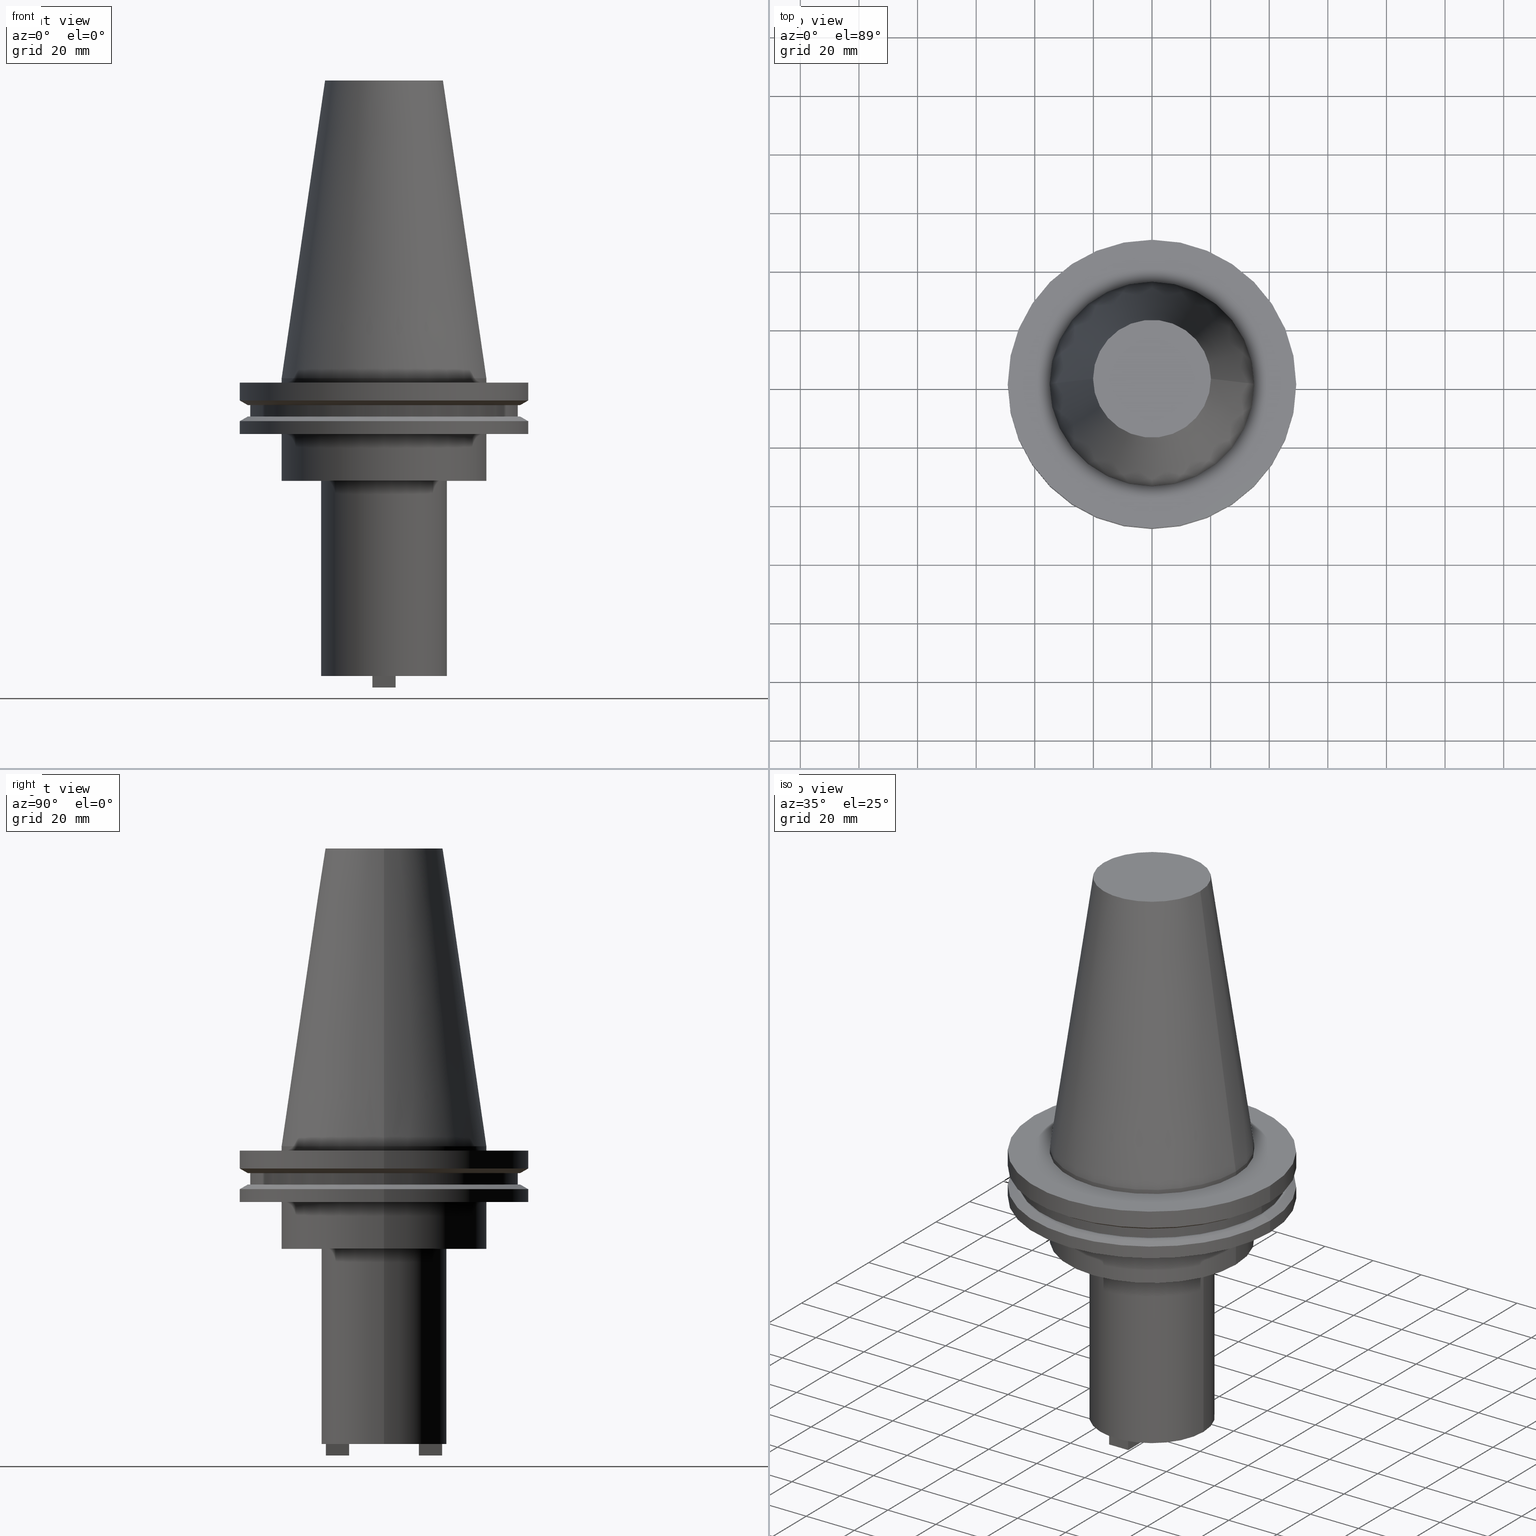
[diagram: canonical four-view strip — front | top / right | iso, engineering-drawing reading convention]
A machine part, canonical four-view strip (front | top / right | iso — engineering-drawing reading convention). The complete STEP part file that produces these views, byte-faithful:
ISO-10303-21;
HEADER;
FILE_DESCRIPTION (( 'STEP AP203' ),
    '1' );
FILE_NAME ('BCV50-SMC_750-4.stp',
    '2022-03-03T19:52:59',
    ( '' ),
    ( '' ),
    'SwSTEP 2.0',
    'SolidWorks 2021',
    '' );
FILE_SCHEMA (( 'CONFIG_CONTROL_DESIGN' ));
ENDSEC;

DATA;
#1 = VECTOR ( 'NONE', #899, 999.9999999999998863 ) ;
#2 = DIRECTION ( 'NONE',  ( 0.8660254037844273833, 0.000000000000000000, 0.5000000000000195399 ) ) ;
#3 = CC_DESIGN_DATE_AND_TIME_ASSIGNMENT ( #210, #1034, ( #678 ) ) ;
#4 = MANIFOLD_SOLID_BREP ( 'Boss-Extrude1', #812 ) ;
#5 = ORIENTED_EDGE ( 'NONE', *, *, #873, .T. ) ;
#6 = CARTESIAN_POINT ( 'NONE',  ( 0.000000000000000000, 45.64500000000000313, -13.05499999999999794 ) ) ;
#7 = CARTESIAN_POINT ( 'NONE',  ( 0.000000000000000000, 0.000000000000000000, -13.05499999999999794 ) ) ;
#8 = VERTEX_POINT ( 'NONE', #622 ) ;
#9 = LINE ( 'NONE', #679, #403 ) ;
#10 = ORIENTED_EDGE ( 'NONE', *, *, #180, .T. ) ;
#11 = AXIS2_PLACEMENT_3D ( 'NONE', #163, #69, #327 ) ;
#12 = ADVANCED_FACE ( 'NONE', ( #948 ), #171, .T. ) ;
#13 = AXIS2_PLACEMENT_3D ( 'NONE', #889, #723, #653 ) ;
#14 = FACE_OUTER_BOUND ( 'NONE', #306, .T. ) ;
#15 = CIRCLE ( 'NONE', #816, 46.43919780457007818 ) ;
#16 = LOCAL_TIME ( 13, 52, 59.00000000000000000, #134 ) ;
#17 = DIRECTION ( 'NONE',  ( -0.000000000000000000, -0.000000000000000000, 1.000000000000000000 ) ) ;
#18 = EDGE_LOOP ( 'NONE', ( #851, #363, #1048, #860 ) ) ;
#19 = DIRECTION ( 'NONE',  ( -0.000000000000000000, -0.000000000000000000, 1.000000000000000000 ) ) ;
#20 = FACE_BOUND ( 'NONE', #393, .T. ) ;
#21 = EDGE_CURVE ( 'NONE', #1064, #329, #722, .T. ) ;
#22 = CARTESIAN_POINT ( 'NONE',  ( -34.92499999999999005, 4.277078946022130098E-15, 101.5999999999999943 ) ) ;
#23 = EDGE_LOOP ( 'NONE', ( #796, #221 ) ) ;
#24 = PERSON_AND_ORGANIZATION ( #428, #495 ) ;
#25 = FACE_OUTER_BOUND ( 'NONE', #769, .T. ) ;
#26 = CARTESIAN_POINT ( 'NONE',  ( 0.000000000000000000, 46.43919780457007818, -9.204999999999998295 ) ) ;
#27 = EDGE_CURVE ( 'NONE', #214, #379, #902, .T. ) ;
#28 = DIRECTION ( 'NONE',  ( 1.000000000000000000, -6.556435184794194253E-16, -0.000000000000000000 ) ) ;
#29 = DIRECTION ( 'NONE',  ( -1.000000000000000000, 0.000000000000000000, 0.000000000000000000 ) ) ;
#30 = PERSON_AND_ORGANIZATION ( #428, #495 ) ;
#31 = ORIENTED_EDGE ( 'NONE', *, *, #543, .T. ) ;
#32 = DESIGN_CONTEXT ( 'detailed design', #250, 'design' ) ;
#33 = FACE_OUTER_BOUND ( 'NONE', #992, .T. ) ;
#34 = VECTOR ( 'NONE', #665, 1000.000000000000000 ) ;
#35 = VECTOR ( 'NONE', #406, 1000.000000000000000 ) ;
#36 = DIRECTION ( 'NONE',  ( -0.000000000000000000, -0.000000000000000000, 1.000000000000000000 ) ) ;
#37 = EDGE_CURVE ( 'NONE', #898, #471, #505, .T. ) ;
#38 = ORIENTED_EDGE ( 'NONE', *, *, #787, .F. ) ;
#39 = CARTESIAN_POINT ( 'NONE',  ( -3.968750000000009770, -19.84375000000001421, -105.5600000000000023 ) ) ;
#40 = DIRECTION ( 'NONE',  ( 1.000000000000000000, 0.000000000000000000, 0.000000000000000000 ) ) ;
#41 = PERSON_AND_ORGANIZATION_ROLE ( 'design_owner' ) ;
#42 = ORIENTED_EDGE ( 'NONE', *, *, #1080, .F. ) ;
#43 = DIRECTION ( 'NONE',  ( 1.000000000000000000, -6.556435184794194253E-16, 0.000000000000000000 ) ) ;
#44 = FACE_OUTER_BOUND ( 'NONE', #109, .T. ) ;
#45 = ORIENTED_EDGE ( 'NONE', *, *, #180, .F. ) ;
#46 = PLANE ( 'NONE',  #1089 ) ;
#47 = ADVANCED_BREP_SHAPE_REPRESENTATION ( 'BCV50-SMC_750-4', ( #4, #878 ), #658 ) ;
#48 = PERSON_AND_ORGANIZATION ( #428, #495 ) ;
#49 = ORIENTED_EDGE ( 'NONE', *, *, #811, .T. ) ;
#50 = CARTESIAN_POINT ( 'NONE',  ( 3.968749999999996447, 19.84374999999998579, -105.5600000000000023 ) ) ;
#51 = DIRECTION ( 'NONE',  ( 1.000000000000000000, 0.000000000000000000, 0.000000000000000000 ) ) ;
#52 = ORIENTED_EDGE ( 'NONE', *, *, #292, .F. ) ;
#53 = DIRECTION ( 'NONE',  ( 0.000000000000000000, 0.000000000000000000, -1.000000000000000000 ) ) ;
#54 = CONICAL_SURFACE ( 'NONE', #90, 49.21499999999998920, 1.047197551196554333 ) ;
#55 = CARTESIAN_POINT ( 'NONE',  ( -3.968750000000007105, 19.84375000000000000, -105.5600000000000023 ) ) ;
#56 = CIRCLE ( 'NONE', #676, 21.45029999999999859 ) ;
#57 = EDGE_LOOP ( 'NONE', ( #843, #497, #907, #52 ) ) ;
#58 = CARTESIAN_POINT ( 'NONE',  ( 0.000000000000000000, 0.000000000000000000, -35.04999999999999716 ) ) ;
#59 = ORIENTED_EDGE ( 'NONE', *, *, #697, .T. ) ;
#60 = ORIENTED_EDGE ( 'NONE', *, *, #219, .T. ) ;
#61 = DIRECTION ( 'NONE',  ( -0.000000000000000000, -0.000000000000000000, 1.000000000000000000 ) ) ;
#62 = EDGE_CURVE ( 'NONE', #819, #937, #1052, .T. ) ;
#63 = ORIENTED_EDGE ( 'NONE', *, *, #311, .T. ) ;
#64 = CARTESIAN_POINT ( 'NONE',  ( 0.000000000000000000, 0.000000000000000000, 101.5999999999999943 ) ) ;
#65 = DIRECTION ( 'NONE',  ( 1.000000000000000000, 0.000000000000000000, 0.000000000000000000 ) ) ;
#66 = DIRECTION ( 'NONE',  ( -0.000000000000000000, -0.000000000000000000, 1.000000000000000000 ) ) ;
#67 = ORIENTED_EDGE ( 'NONE', *, *, #574, .F. ) ;
#68 = CARTESIAN_POINT ( 'NONE',  ( 3.968750000000017319, 11.90624999999999289, -101.5999999999999943 ) ) ;
#69 = DIRECTION ( 'NONE',  ( -0.000000000000000000, -0.000000000000000000, 1.000000000000000000 ) ) ;
#70 = CARTESIAN_POINT ( 'NONE',  ( 0.000000000000000000, 49.21499999999998920, -19.04999999999999716 ) ) ;
#71 = AXIS2_PLACEMENT_3D ( 'NONE', #418, #82, #933 ) ;
#72 = VECTOR ( 'NONE', #117, 1000.000000000000000 ) ;
#73 = CC_DESIGN_PERSON_AND_ORGANIZATION_ASSIGNMENT ( #536, #702, ( #678 ) ) ;
#74 = DIRECTION ( 'NONE',  ( -0.8660254037844169472, 0.000000000000000000, -0.5000000000000375255 ) ) ;
#75 = DIRECTION ( 'NONE',  ( 1.000000000000000000, 0.000000000000000000, 0.000000000000000000 ) ) ;
#76 = DIRECTION ( 'NONE',  ( 0.000000000000000000, -0.000000000000000000, 1.000000000000000000 ) ) ;
#77 = ORIENTED_EDGE ( 'NONE', *, *, #496, .F. ) ;
#78 = CARTESIAN_POINT ( 'NONE',  ( -34.92499999999999005, 0.000000000000000000, 0.000000000000000000 ) ) ;
#79 = EDGE_CURVE ( 'NONE', #735, #287, #88, .T. ) ;
#80 = CARTESIAN_POINT ( 'NONE',  ( 3.968749999999996447, 19.84374999999998579, -101.5999999999999943 ) ) ;
#81 = CARTESIAN_POINT ( 'NONE',  ( 0.000000000000000000, 0.000000000000000000, -105.5600000000000023 ) ) ;
#82 = DIRECTION ( 'NONE',  ( -0.000000000000000000, -0.000000000000000000, 1.000000000000000000 ) ) ;
#83 = ORIENTED_EDGE ( 'NONE', *, *, #37, .T. ) ;
#84 = FACE_OUTER_BOUND ( 'NONE', #886, .T. ) ;
#85 = ADVANCED_FACE ( 'NONE', ( #909 ), #835, .F. ) ;
#86 = DIRECTION ( 'NONE',  ( 0.8660254037844169472, 1.060575238724880168E-16, -0.5000000000000375255 ) ) ;
#87 = DIRECTION ( 'NONE',  ( 1.000000000000000000, 0.000000000000000000, 0.000000000000000000 ) ) ;
#88 = CIRCLE ( 'NONE', #338, 34.92499999999999716 ) ;
#89 = EDGE_CURVE ( 'NONE', #595, #912, #481, .T. ) ;
#90 = AXIS2_PLACEMENT_3D ( 'NONE', #864, #705, #1038 ) ;
#91 = DIRECTION ( 'NONE',  ( -0.000000000000000000, -0.000000000000000000, 1.000000000000000000 ) ) ;
#92 = CIRCLE ( 'NONE', #876, 20.10819343178871321 ) ;
#93 = CIRCLE ( 'NONE', #302, 34.92499999999999716 ) ;
#94 = ORIENTED_EDGE ( 'NONE', *, *, #27, .T. ) ;
#95 = EDGE_CURVE ( 'NONE', #898, #959, #929, .T. ) ;
#96 = VERTEX_POINT ( 'NONE', #905 ) ;
#97 = FACE_OUTER_BOUND ( 'NONE', #517, .T. ) ;
#98 = EDGE_LOOP ( 'NONE', ( #113, #10 ) ) ;
#99 = EDGE_CURVE ( 'NONE', #959, #1015, #594, .T. ) ;
#100 = DIRECTION ( 'NONE',  ( 0.000000000000000000, 0.000000000000000000, -1.000000000000000000 ) ) ;
#101 = AXIS2_PLACEMENT_3D ( 'NONE', #681, #1010, #411 ) ;
#102 = VECTOR ( 'NONE', #952, 1000.000000000000000 ) ;
#103 = DIRECTION ( 'NONE',  ( 0.000000000000000000, -0.000000000000000000, 1.000000000000000000 ) ) ;
#104 = AXIS2_PLACEMENT_3D ( 'NONE', #1079, #330, #313 ) ;
#105 = CC_DESIGN_APPROVAL ( #999, ( #678 ) ) ;
#106 = CARTESIAN_POINT ( 'NONE',  ( 0.000000000000000000, 0.000000000000000000, 101.5999999999999943 ) ) ;
#107 = ORIENTED_EDGE ( 'NONE', *, *, #862, .F. ) ;
#108 = DIRECTION ( 'NONE',  ( -0.000000000000000000, -0.000000000000000000, 1.000000000000000000 ) ) ;
#109 = EDGE_LOOP ( 'NONE', ( #38, #1083, #60, #107 ) ) ;
#110 = CARTESIAN_POINT ( 'NONE',  ( -46.43919780457007818, 5.857130358318727293E-15, -9.204999999999991189 ) ) ;
#111 = EDGE_CURVE ( 'NONE', #779, #802, #828, .T. ) ;
#112 = FACE_OUTER_BOUND ( 'NONE', #605, .T. ) ;
#113 = ORIENTED_EDGE ( 'NONE', *, *, #500, .T. ) ;
#114 = ORIENTED_EDGE ( 'NONE', *, *, #687, .F. ) ;
#115 = DIRECTION ( 'NONE',  ( -1.000000000000000000, 0.000000000000000000, 0.000000000000000000 ) ) ;
#116 = EDGE_CURVE ( 'NONE', #463, #314, #1081, .T. ) ;
#117 = DIRECTION ( 'NONE',  ( -0.000000000000000000, -0.000000000000000000, 1.000000000000000000 ) ) ;
#118 = APPROVAL_STATUS ( 'not_yet_approved' ) ;
#119 = CIRCLE ( 'NONE', #71, 45.64500000000000313 ) ;
#120 = DIRECTION ( 'NONE',  ( 1.000000000000000000, 0.000000000000000000, 0.000000000000000000 ) ) ;
#121 = AXIS2_PLACEMENT_3D ( 'NONE', #457, #997, #904 ) ;
#122 = CARTESIAN_POINT ( 'NONE',  ( 0.000000000000000000, 0.000000000000000000, -101.5999999999999943 ) ) ;
#123 = AXIS2_PLACEMENT_3D ( 'NONE', #64, #91, #1009 ) ;
#124 = APPROVAL_STATUS ( 'not_yet_approved' ) ;
#125 = ORIENTED_EDGE ( 'NONE', *, *, #1080, .T. ) ;
#126 = DIRECTION ( 'NONE',  ( -0.000000000000000000, -0.000000000000000000, 1.000000000000000000 ) ) ;
#127 = CARTESIAN_POINT ( 'NONE',  ( 0.000000000000000000, 0.000000000000000000, -9.204999999999991189 ) ) ;
#128 = CALENDAR_DATE ( 2022, 3, 3 ) ;
#129 = ORIENTED_EDGE ( 'NONE', *, *, #150, .T. ) ;
#130 = FACE_OUTER_BOUND ( 'NONE', #349, .T. ) ;
#131 = ORIENTED_EDGE ( 'NONE', *, *, #62, .F. ) ;
#132 = VERTEX_POINT ( 'NONE', #824 ) ;
#133 = DIRECTION ( 'NONE',  ( 1.000000000000000000, 0.000000000000000000, 0.000000000000000000 ) ) ;
#134 = COORDINATED_UNIVERSAL_TIME_OFFSET ( 6, 0, .BEHIND. ) ;
#135 = EDGE_CURVE ( 'NONE', #969, #181, #384, .T. ) ;
#136 = ORIENTED_EDGE ( 'NONE', *, *, #1087, .T. ) ;
#137 = LINE ( 'NONE', #473, #528 ) ;
#138 = ORIENTED_EDGE ( 'NONE', *, *, #873, .F. ) ;
#139 = EDGE_LOOP ( 'NONE', ( #42, #733 ) ) ;
#140 = FACE_OUTER_BOUND ( 'NONE', #139, .T. ) ;
#141 = CIRCLE ( 'NONE', #747, 34.92499999999999716 ) ;
#142 = APPROVAL_PERSON_ORGANIZATION ( #790, #706, #280 ) ;
#143 = VERTEX_POINT ( 'NONE', #659 ) ;
#144 = FACE_OUTER_BOUND ( 'NONE', #750, .T. ) ;
#145 = CARTESIAN_POINT ( 'NONE',  ( 3.968749999999996447, 19.84374999999998579, -105.5600000000000023 ) ) ;
#146 = DIRECTION ( 'NONE',  ( 1.000000000000000000, 0.000000000000000000, 0.000000000000000000 ) ) ;
#147 = ORIENTED_EDGE ( 'NONE', *, *, #697, .F. ) ;
#148 = DIRECTION ( 'NONE',  ( 1.000000000000000000, 0.000000000000000000, 0.000000000000000000 ) ) ;
#149 = LINE ( 'NONE', #80, #1070 ) ;
#150 = EDGE_CURVE ( 'NONE', #233, #8, #753, .T. ) ;
#151 = CARTESIAN_POINT ( 'NONE',  ( 0.000000000000000000, 0.000000000000000000, -1.499999999999987566 ) ) ;
#152 = ORIENTED_EDGE ( 'NONE', *, *, #394, .T. ) ;
#153 = DIRECTION ( 'NONE',  ( 1.000000000000000000, 0.000000000000000000, 0.000000000000000000 ) ) ;
#154 = EDGE_CURVE ( 'NONE', #1074, #817, #986, .T. ) ;
#155 = DIRECTION ( 'NONE',  ( -0.8660254037844273833, 1.060575238724893110E-16, 0.5000000000000195399 ) ) ;
#156 = DIRECTION ( 'NONE',  ( -0.000000000000000000, -0.000000000000000000, 1.000000000000000000 ) ) ;
#157 = AXIS2_PLACEMENT_3D ( 'NONE', #377, #541, #715 ) ;
#158 = AXIS2_PLACEMENT_3D ( 'NONE', #26, #103, #1086 ) ;
#159 = EDGE_CURVE ( 'NONE', #791, #610, #319, .T. ) ;
#160 = ORIENTED_EDGE ( 'NONE', *, *, #1040, .T. ) ;
#161 = DIRECTION ( 'NONE',  ( 0.000000000000000000, 0.000000000000000000, -1.000000000000000000 ) ) ;
#162 = LOCAL_TIME ( 13, 52, 59.00000000000000000, #890 ) ;
#163 = CARTESIAN_POINT ( 'NONE',  ( 0.000000000000000000, 0.000000000000000000, -101.5999999999999943 ) ) ;
#164 = FACE_OUTER_BOUND ( 'NONE', #698, .T. ) ;
#165 = ORIENTED_EDGE ( 'NONE', *, *, #95, .T. ) ;
#166 = CARTESIAN_POINT ( 'NONE',  ( 0.000000000000000000, 0.000000000000000000, -19.04999999999999716 ) ) ;
#167 = CARTESIAN_POINT ( 'NONE',  ( -21.45029999999999859, 2.626904123575046818E-15, 0.000000000000000000 ) ) ;
#168 = FACE_OUTER_BOUND ( 'NONE', #436, .T. ) ;
#169 = ORIENTED_EDGE ( 'NONE', *, *, #838, .F. ) ;
#170 = CARTESIAN_POINT ( 'NONE',  ( 3.968750000000034639, -11.90625000000000711, -101.5999999999999943 ) ) ;
#171 = CONICAL_SURFACE ( 'NONE', #402, 34.92499999999999005, 0.1448138465474119452 ) ;
#172 = ORIENTED_EDGE ( 'NONE', *, *, #224, .T. ) ;
#173 = CIRCLE ( 'NONE', #321, 49.21499999999999631 ) ;
#174 = CARTESIAN_POINT ( 'NONE',  ( 0.000000000000000000, 0.000000000000000000, -19.04999999999999716 ) ) ;
#175 = CIRCLE ( 'NONE', #833, 49.21500000000000341 ) ;
#176 = CIRCLE ( 'NONE', #494, 34.92499999999999005 ) ;
#177 = CARTESIAN_POINT ( 'NONE',  ( 46.43919780457007818, 0.000000000000000000, -9.204999999999991189 ) ) ;
#178 = ORIENTED_EDGE ( 'NONE', *, *, #730, .F. ) ;
#179 = CARTESIAN_POINT ( 'NONE',  ( 3.968750000000020872, -19.84375000000002132, -105.5600000000000023 ) ) ;
#180 = EDGE_CURVE ( 'NONE', #262, #443, #453, .T. ) ;
#181 = VERTEX_POINT ( 'NONE', #332 ) ;
#182 = FACE_OUTER_BOUND ( 'NONE', #1061, .T. ) ;
#183 = CARTESIAN_POINT ( 'NONE',  ( 3.968749999999996447, 19.84374999999998579, -105.5600000000000023 ) ) ;
#184 = PLANE ( 'NONE',  #261 ) ;
#185 = ORIENTED_EDGE ( 'NONE', *, *, #278, .F. ) ;
#186 =( NAMED_UNIT ( * ) SI_UNIT ( $, .STERADIAN. ) SOLID_ANGLE_UNIT ( ) );
#187 = AXIS2_PLACEMENT_3D ( 'NONE', #106, #373, #460 ) ;
#188 = ORIENTED_EDGE ( 'NONE', *, *, #711, .T. ) ;
#189 = FACE_OUTER_BOUND ( 'NONE', #192, .T. ) ;
#190 = AXIS2_PLACEMENT_3D ( 'NONE', #861, #437, #686 ) ;
#191 = DIRECTION ( 'NONE',  ( 0.000000000000000000, 0.000000000000000000, 1.000000000000000000 ) ) ;
#192 = EDGE_LOOP ( 'NONE', ( #652, #429, #408, #888 ) ) ;
#193 = CC_DESIGN_PERSON_AND_ORGANIZATION_ASSIGNMENT ( #24, #41, ( #821 ) ) ;
#194 = ORIENTED_EDGE ( 'NONE', *, *, #259, .F. ) ;
#195 = DIRECTION ( 'NONE',  ( -6.556435184794194253E-16, -1.000000000000000000, 0.000000000000000000 ) ) ;
#196 = DIRECTION ( 'NONE',  ( -0.000000000000000000, -0.000000000000000000, 1.000000000000000000 ) ) ;
#197 = CARTESIAN_POINT ( 'NONE',  ( 3.968750000000034639, -11.90625000000000533, -105.5600000000000023 ) ) ;
#198 = ADVANCED_FACE ( 'NONE', ( #998 ), #916, .F. ) ;
#199 = CALENDAR_DATE ( 2022, 3, 3 ) ;
#200 = LINE ( 'NONE', #542, #1037 ) ;
#201 = CARTESIAN_POINT ( 'NONE',  ( 3.968750000000034639, -11.90625000000000533, -101.5999999999999943 ) ) ;
#202 = APPROVAL_STATUS ( 'not_yet_approved' ) ;
#203 = EDGE_LOOP ( 'NONE', ( #830, #582, #976, #662 ) ) ;
#204 = CIRCLE ( 'NONE', #157, 49.21499999999998920 ) ;
#205 = CARTESIAN_POINT ( 'NONE',  ( 0.000000000000000000, 0.000000000000000000, -7.602389855251287187 ) ) ;
#206 = CONICAL_SURFACE ( 'NONE', #512, 34.92499999999999005, 0.1448138465474119452 ) ;
#207 = EDGE_CURVE ( 'NONE', #975, #560, #149, .T. ) ;
#208 = DIRECTION ( 'NONE',  ( 1.000000000000000000, 0.000000000000000000, 0.000000000000000000 ) ) ;
#209 = APPROVAL_PERSON_ORGANIZATION ( #48, #999, #558 ) ;
#210 = DATE_AND_TIME ( #462, #16 ) ;
#211 = VERTEX_POINT ( 'NONE', #1018 ) ;
#212 = DIRECTION ( 'NONE',  ( 1.000000000000000000, 0.000000000000000000, 0.000000000000000000 ) ) ;
#213 = LINE ( 'NONE', #555, #604 ) ;
#214 = VERTEX_POINT ( 'NONE', #50 ) ;
#215 = DIRECTION ( 'NONE',  ( 1.000000000000000000, -7.649174382259954761E-16, 0.000000000000000000 ) ) ;
#216 = ADVANCED_FACE ( 'NONE', ( #25 ), #307, .F. ) ;
#217 = PERSON_AND_ORGANIZATION_ROLE ( 'classification_officer' ) ;
#218 = DIRECTION ( 'NONE',  ( 1.000000000000000000, -1.748382715945127671E-15, -0.000000000000000000 ) ) ;
#219 = EDGE_CURVE ( 'NONE', #802, #1063, #204, .T. ) ;
#220 = EDGE_LOOP ( 'NONE', ( #982, #275 ) ) ;
#221 = ORIENTED_EDGE ( 'NONE', *, *, #79, .T. ) ;
#222 = DIRECTION ( 'NONE',  ( 0.000000000000000000, -0.000000000000000000, 1.000000000000000000 ) ) ;
#223 = ORIENTED_EDGE ( 'NONE', *, *, #509, .T. ) ;
#224 = EDGE_CURVE ( 'NONE', #1015, #471, #601, .T. ) ;
#225 = CARTESIAN_POINT ( 'NONE',  ( 0.000000000000000000, 0.000000000000000000, 101.5999999999999943 ) ) ;
#226 = VECTOR ( 'NONE', #485, 1000.000000000000000 ) ;
#227 = ORIENTED_EDGE ( 'NONE', *, *, #955, .T. ) ;
#228 = LINE ( 'NONE', #906, #353 ) ;
#229 = AXIS2_PLACEMENT_3D ( 'NONE', #274, #1027, #426 ) ;
#230 = ORIENTED_EDGE ( 'NONE', *, *, #891, .T. ) ;
#231 = LINE ( 'NONE', #1067, #248 ) ;
#232 = EDGE_CURVE ( 'NONE', #132, #779, #772, .T. ) ;
#233 = VERTEX_POINT ( 'NONE', #177 ) ;
#234 = DIRECTION ( 'NONE',  ( -1.000000000000000000, -2.622574073917695056E-15, 0.000000000000000000 ) ) ;
#235 = PLANE ( 'NONE',  #688 ) ;
#236 = EDGE_CURVE ( 'NONE', #610, #791, #119, .T. ) ;
#237 = ORIENTED_EDGE ( 'NONE', *, *, #801, .T. ) ;
#238 = CARTESIAN_POINT ( 'NONE',  ( 34.92499999999999005, 4.277078946022130098E-15, 0.000000000000000000 ) ) ;
#239 = DIRECTION ( 'NONE',  ( -0.000000000000000000, -0.000000000000000000, 1.000000000000000000 ) ) ;
#240 = CYLINDRICAL_SURFACE ( 'NONE', #773, 45.64500000000000313 ) ;
#241 = ORIENTED_EDGE ( 'NONE', *, *, #299, .F. ) ;
#242 = LINE ( 'NONE', #840, #728 ) ;
#243 = DIRECTION ( 'NONE',  ( -0.000000000000000000, -0.000000000000000000, 1.000000000000000000 ) ) ;
#244 = DIRECTION ( 'NONE',  ( -0.000000000000000000, -0.000000000000000000, 1.000000000000000000 ) ) ;
#245 = AXIS2_PLACEMENT_3D ( 'NONE', #367, #295, #212 ) ;
#246 = CC_DESIGN_PERSON_AND_ORGANIZATION_ASSIGNMENT ( #636, #217, ( #642 ) ) ;
#247 = DIRECTION ( 'NONE',  ( -0.000000000000000000, -0.000000000000000000, 1.000000000000000000 ) ) ;
#248 = VECTOR ( 'NONE', #420, 1000.000000000000000 ) ;
#249 = EDGE_LOOP ( 'NONE', ( #67, #188, #49, #396 ) ) ;
#250 = APPLICATION_CONTEXT ( 'configuration controlled 3d designs of mechanical parts and assemblies' ) ;
#251 = DIRECTION ( 'NONE',  ( -0.000000000000000000, -0.000000000000000000, 1.000000000000000000 ) ) ;
#252 = PRODUCT_DEFINITION_FORMATION_WITH_SPECIFIED_SOURCE ( 'ANY', '', #821, .NOT_KNOWN. ) ;
#253 = DIRECTION ( 'NONE',  ( -0.000000000000000000, -0.000000000000000000, 1.000000000000000000 ) ) ;
#254 = ORIENTED_EDGE ( 'NONE', *, *, #787, .T. ) ;
#255 = FACE_OUTER_BOUND ( 'NONE', #691, .T. ) ;
#256 = DIRECTION ( 'NONE',  ( -1.748382715945127671E-15, -1.000000000000000000, 0.000000000000000000 ) ) ;
#257 = ORIENTED_EDGE ( 'NONE', *, *, #99, .F. ) ;
#258 = CARTESIAN_POINT ( 'NONE',  ( -49.21499999999998920, 6.027099222003697037E-15, -19.04999999999999716 ) ) ;
#259 = EDGE_CURVE ( 'NONE', #379, #463, #759, .T. ) ;
#260 = AXIS2_PLACEMENT_3D ( 'NONE', #921, #675, #569 ) ;
#261 = AXIS2_PLACEMENT_3D ( 'NONE', #452, #191, #1042 ) ;
#262 = VERTEX_POINT ( 'NONE', #424 ) ;
#263 = VECTOR ( 'NONE', #917, 1000.000000000000000 ) ;
#264 = CARTESIAN_POINT ( 'NONE',  ( -49.21499999999998920, 6.027099222003697037E-15, -14.65761014474876944 ) ) ;
#265 = AXIS2_PLACEMENT_3D ( 'NONE', #6, #606, #518 ) ;
#266 = PLANE ( 'NONE',  #1020 ) ;
#267 = ADVANCED_FACE ( 'NONE', ( #768 ), #922, .T. ) ;
#268 = EDGE_LOOP ( 'NONE', ( #131, #950 ) ) ;
#269 = DIRECTION ( 'NONE',  ( 1.000000000000000000, 0.000000000000000000, 0.000000000000000000 ) ) ;
#270 = LINE ( 'NONE', #183, #603 ) ;
#271 = EDGE_CURVE ( 'NONE', #1063, #802, #896, .T. ) ;
#272 = DIRECTION ( 'NONE',  ( 1.000000000000000000, 0.000000000000000000, 0.000000000000000000 ) ) ;
#273 = ORIENTED_EDGE ( 'NONE', *, *, #559, .T. ) ;
#274 = CARTESIAN_POINT ( 'NONE',  ( 3.968750000000020872, -19.84375000000002132, -105.5600000000000023 ) ) ;
#275 = ORIENTED_EDGE ( 'NONE', *, *, #388, .F. ) ;
#276 = DIRECTION ( 'NONE',  ( -0.000000000000000000, -0.000000000000000000, 1.000000000000000000 ) ) ;
#277 = DIRECTION ( 'NONE',  ( -0.000000000000000000, -0.000000000000000000, 1.000000000000000000 ) ) ;
#278 = EDGE_CURVE ( 'NONE', #766, #837, #9, .T. ) ;
#279 = ORIENTED_EDGE ( 'NONE', *, *, #935, .F. ) ;
#280 = APPROVAL_ROLE ( '' ) ;
#281 = AXIS2_PLACEMENT_3D ( 'NONE', #345, #846, #764 ) ;
#282 = ORIENTED_EDGE ( 'NONE', *, *, #757, .T. ) ;
#283 = PLANE ( 'NONE',  #405 ) ;
#284 = AXIS2_PLACEMENT_3D ( 'NONE', #291, #378, #115 ) ;
#285 = ADVANCED_FACE ( 'NONE', ( #168 ), #506, .F. ) ;
#286 = PLANE ( 'NONE',  #340 ) ;
#287 = VERTEX_POINT ( 'NONE', #926 ) ;
#288 = CARTESIAN_POINT ( 'NONE',  ( 46.43919780457007818, 5.857130358318725715E-15, -13.05499999999999794 ) ) ;
#289 = CARTESIAN_POINT ( 'NONE',  ( 3.968750000000017319, 11.90624999999999289, -105.5600000000000023 ) ) ;
#290 = ORIENTED_EDGE ( 'NONE', *, *, #461, .F. ) ;
#291 = CARTESIAN_POINT ( 'NONE',  ( 0.000000000000000000, 0.000000000000000000, -14.65761014474876944 ) ) ;
#292 = EDGE_CURVE ( 'NONE', #96, #1064, #348, .T. ) ;
#293 = CARTESIAN_POINT ( 'NONE',  ( 0.000000000000000000, 0.000000000000000000, -9.204999999999991189 ) ) ;
#294 = ORIENTED_EDGE ( 'NONE', *, *, #956, .F. ) ;
#295 = DIRECTION ( 'NONE',  ( -0.000000000000000000, -0.000000000000000000, 1.000000000000000000 ) ) ;
#296 = VECTOR ( 'NONE', #2, 1000.000000000000000 ) ;
#297 = DIRECTION ( 'NONE',  ( 1.000000000000000000, 0.000000000000000000, 0.000000000000000000 ) ) ;
#298 = CONICAL_SURFACE ( 'NONE', #586, 46.43919780457007818, 1.047197551196575205 ) ;
#299 = EDGE_CURVE ( 'NONE', #379, #211, #700, .T. ) ;
#300 = AXIS2_PLACEMENT_3D ( 'NONE', #1019, #244, #361 ) ;
#301 = ORIENTED_EDGE ( 'NONE', *, *, #671, .F. ) ;
#302 = AXIS2_PLACEMENT_3D ( 'NONE', #1084, #251, #583 ) ;
#303 = ORIENTED_EDGE ( 'NONE', *, *, #752, .F. ) ;
#304 = CARTESIAN_POINT ( 'NONE',  ( -4.214999999999974101, 5.161886258406062987E-16, -101.5999999999999943 ) ) ;
#305 = ADVANCED_FACE ( 'NONE', ( #112 ), #626, .T. ) ;
#306 = EDGE_LOOP ( 'NONE', ( #59, #701, #564, #178 ) ) ;
#307 = PLANE ( 'NONE',  #545 ) ;
#308 = DIRECTION ( 'NONE',  ( -0.000000000000000000, -0.000000000000000000, 1.000000000000000000 ) ) ;
#309 = ORIENTED_EDGE ( 'NONE', *, *, #292, .T. ) ;
#310 = LINE ( 'NONE', #563, #831 ) ;
#311 = EDGE_CURVE ( 'NONE', #923, #755, #511, .T. ) ;
#312 = ORIENTED_EDGE ( 'NONE', *, *, #862, .T. ) ;
#313 = DIRECTION ( 'NONE',  ( 1.000000000000000000, 0.000000000000000000, 0.000000000000000000 ) ) ;
#314 = VERTEX_POINT ( 'NONE', #859 ) ;
#315 = FACE_BOUND ( 'NONE', #23, .T. ) ;
#316 = ADVANCED_FACE ( 'NONE', ( #445 ), #298, .T. ) ;
#317 = EDGE_LOOP ( 'NONE', ( #1002, #719, #354, #45 ) ) ;
#318 = CARTESIAN_POINT ( 'NONE',  ( 0.000000000000000000, 20.10819343178871321, 101.5999999999999943 ) ) ;
#319 = CIRCLE ( 'NONE', #962, 45.64500000000000313 ) ;
#320 = DIRECTION ( 'NONE',  ( 1.000000000000000000, 0.000000000000000000, 0.000000000000000000 ) ) ;
#321 = AXIS2_PLACEMENT_3D ( 'NONE', #151, #400, #971 ) ;
#322 = CARTESIAN_POINT ( 'NONE',  ( -3.968750000000012879, 11.90625000000001776, -105.5600000000000023 ) ) ;
#323 = VECTOR ( 'NONE', #693, 1000.000000000000000 ) ;
#324 = VECTOR ( 'NONE', #593, 1000.000000000000000 ) ;
#325 = ORIENTED_EDGE ( 'NONE', *, *, #884, .T. ) ;
#326 = CARTESIAN_POINT ( 'NONE',  ( -49.21500000000000341, 6.027099222003699404E-15, -7.602389855251287187 ) ) ;
#327 = DIRECTION ( 'NONE',  ( 1.000000000000000000, 0.000000000000000000, 0.000000000000000000 ) ) ;
#328 = DIRECTION ( 'NONE',  ( -1.000000000000000000, 8.741913579725607786E-16, 0.000000000000000000 ) ) ;
#329 = VERTEX_POINT ( 'NONE', #957 ) ;
#330 = DIRECTION ( 'NONE',  ( -0.000000000000000000, -0.000000000000000000, 1.000000000000000000 ) ) ;
#331 = EDGE_CURVE ( 'NONE', #314, #975, #440, .T. ) ;
#332 = CARTESIAN_POINT ( 'NONE',  ( 49.21499999999999631, 0.000000000000000000, -1.499999999999987566 ) ) ;
#333 = FACE_OUTER_BOUND ( 'NONE', #268, .T. ) ;
#334 = EDGE_LOOP ( 'NONE', ( #419, #822, #129, #696 ) ) ;
#335 = CARTESIAN_POINT ( 'NONE',  ( 0.000000000000000000, 0.000000000000000000, -35.04999999999999716 ) ) ;
#336 = ADVANCED_FACE ( 'NONE', ( #712 ), #745, .T. ) ;
#337 = DIRECTION ( 'NONE',  ( -1.748382715945124910E-15, -1.000000000000000000, 0.000000000000000000 ) ) ;
#338 = AXIS2_PLACEMENT_3D ( 'NONE', #399, #243, #65 ) ;
#339 = APPLICATION_CONTEXT ( 'configuration controlled 3d designs of mechanical parts and assemblies' ) ;
#340 = AXIS2_PLACEMENT_3D ( 'NONE', #544, #875, #551 ) ;
#341 = CARTESIAN_POINT ( 'NONE',  ( 3.968750000000017319, 11.90624999999999289, -105.5600000000000023 ) ) ;
#342 = EDGE_LOOP ( 'NONE', ( #927, #77, #185, #223 ) ) ;
#343 =( LENGTH_UNIT ( ) NAMED_UNIT ( * ) SI_UNIT ( .MILLI., .METRE. ) );
#344 = CARTESIAN_POINT ( 'NONE',  ( 0.000000000000000000, 0.000000000000000000, -13.05499999999999794 ) ) ;
#345 = CARTESIAN_POINT ( 'NONE',  ( 0.000000000000000000, 0.000000000000000000, 0.000000000000000000 ) ) ;
#346 = ORIENTED_EDGE ( 'NONE', *, *, #628, .T. ) ;
#347 = CARTESIAN_POINT ( 'NONE',  ( 0.000000000000000000, 0.000000000000000000, -101.5999999999999943 ) ) ;
#348 = LINE ( 'NONE', #201, #546 ) ;
#349 = EDGE_LOOP ( 'NONE', ( #114, #571, #477, #469 ) ) ;
#350 = PRODUCT_RELATED_PRODUCT_CATEGORY ( 'detail', '', ( #821 ) ) ;
#351 = DIRECTION ( 'NONE',  ( 1.000000000000000000, 0.000000000000000000, 0.000000000000000000 ) ) ;
#352 = VECTOR ( 'NONE', #994, 1000.000000000000000 ) ;
#353 = VECTOR ( 'NONE', #395, 1000.000000000000000 ) ;
#354 = ORIENTED_EDGE ( 'NONE', *, *, #838, .T. ) ;
#355 = AXIS2_PLACEMENT_3D ( 'NONE', #1044, #126, #871 ) ;
#356 = DIRECTION ( 'NONE',  ( -0.000000000000000000, -0.000000000000000000, 1.000000000000000000 ) ) ;
#357 = LINE ( 'NONE', #1023, #588 ) ;
#358 = CARTESIAN_POINT ( 'NONE',  ( 0.000000000000000000, 0.000000000000000000, -9.204999999999991189 ) ) ;
#359 = VERTEX_POINT ( 'NONE', #197 ) ;
#360 = FACE_BOUND ( 'NONE', #804, .T. ) ;
#361 = DIRECTION ( 'NONE',  ( 1.000000000000000000, 0.000000000000000000, 0.000000000000000000 ) ) ;
#362 = CARTESIAN_POINT ( 'NONE',  ( 0.000000000000000000, 0.000000000000000000, 101.5999999999999801 ) ) ;
#363 = ORIENTED_EDGE ( 'NONE', *, *, #89, .T. ) ;
#364 = FACE_BOUND ( 'NONE', #1078, .T. ) ;
#365 = CARTESIAN_POINT ( 'NONE',  ( 0.000000000000000000, 0.000000000000000000, 101.5999999999999943 ) ) ;
#366 = AXIS2_PLACEMENT_3D ( 'NONE', #985, #61, #146 ) ;
#367 = CARTESIAN_POINT ( 'NONE',  ( 0.000000000000000000, 0.000000000000000000, -35.04999999999999716 ) ) ;
#368 = CYLINDRICAL_SURFACE ( 'NONE', #121, 45.64500000000000313 ) ;
#369 = CIRCLE ( 'NONE', #641, 49.21499999999998920 ) ;
#370 = DIRECTION ( 'NONE',  ( 1.000000000000000000, 0.000000000000000000, 0.000000000000000000 ) ) ;
#371 = ORIENTED_EDGE ( 'NONE', *, *, #931, .F. ) ;
#372 = DIRECTION ( 'NONE',  ( -0.000000000000000000, -0.000000000000000000, 1.000000000000000000 ) ) ;
#373 = DIRECTION ( 'NONE',  ( -0.000000000000000000, -0.000000000000000000, 1.000000000000000000 ) ) ;
#374 = PERSON_AND_ORGANIZATION ( #428, #495 ) ;
#375 = EDGE_CURVE ( 'NONE', #1074, #376, #525, .T. ) ;
#376 = VERTEX_POINT ( 'NONE', #947 ) ;
#377 = CARTESIAN_POINT ( 'NONE',  ( 0.000000000000000000, 0.000000000000000000, -14.65761014474876944 ) ) ;
#378 = DIRECTION ( 'NONE',  ( 0.000000000000000000, 0.000000000000000000, -1.000000000000000000 ) ) ;
#379 = VERTEX_POINT ( 'NONE', #539 ) ;
#380 = DIRECTION ( 'NONE',  ( -0.000000000000000000, -0.000000000000000000, 1.000000000000000000 ) ) ;
#381 = EDGE_CURVE ( 'NONE', #610, #262, #695, .T. ) ;
#382 = COORDINATED_UNIVERSAL_TIME_OFFSET ( 6, 0, .BEHIND. ) ;
#383 = ORIENTED_EDGE ( 'NONE', *, *, #687, .T. ) ;
#384 = CIRCLE ( 'NONE', #743, 49.21499999999999631 ) ;
#385 = CARTESIAN_POINT ( 'NONE',  ( 0.000000000000000000, 0.000000000000000000, -13.05499999999999794 ) ) ;
#386 = AXIS2_PLACEMENT_3D ( 'NONE', #704, #276, #519 ) ;
#387 = ORIENTED_EDGE ( 'NONE', *, *, #1046, .F. ) ;
#388 = EDGE_CURVE ( 'NONE', #959, #898, #491, .T. ) ;
#389 = ORIENTED_EDGE ( 'NONE', *, *, #664, .F. ) ;
#390 = CARTESIAN_POINT ( 'NONE',  ( -34.92499999999999716, 4.277078946022130887E-15, -35.04999999999999716 ) ) ;
#391 = DIRECTION ( 'NONE',  ( -0.000000000000000000, -0.000000000000000000, 1.000000000000000000 ) ) ;
#392 = ORIENTED_EDGE ( 'NONE', *, *, #394, .F. ) ;
#393 = EDGE_LOOP ( 'NONE', ( #282, #1033 ) ) ;
#394 = EDGE_CURVE ( 'NONE', #1066, #1063, #788, .T. ) ;
#395 = DIRECTION ( 'NONE',  ( -1.000000000000000000, 8.741913579725607786E-16, 0.000000000000000000 ) ) ;
#396 = ORIENTED_EDGE ( 'NONE', *, *, #135, .F. ) ;
#397 = DIRECTION ( 'NONE',  ( -1.000000000000000000, 3.059669752903962577E-15, 0.000000000000000000 ) ) ;
#398 = EDGE_LOOP ( 'NONE', ( #744, #446, #814, #1043 ) ) ;
#399 = CARTESIAN_POINT ( 'NONE',  ( 0.000000000000000000, 0.000000000000000000, -19.04999999999999716 ) ) ;
#400 = DIRECTION ( 'NONE',  ( -0.000000000000000000, -0.000000000000000000, 1.000000000000000000 ) ) ;
#401 = CARTESIAN_POINT ( 'NONE',  ( 21.45029999999999859, 0.000000000000000000, -101.5999999999999943 ) ) ;
#402 = AXIS2_PLACEMENT_3D ( 'NONE', #789, #53, #29 ) ;
#403 = VECTOR ( 'NONE', #1007, 1000.000000000000000 ) ;
#404 = CARTESIAN_POINT ( 'NONE',  ( 0.000000000000000000, 0.000000000000000000, -1.499999999999987566 ) ) ;
#405 = AXIS2_PLACEMENT_3D ( 'NONE', #612, #76, #836 ) ;
#406 = DIRECTION ( 'NONE',  ( -0.000000000000000000, -0.000000000000000000, 1.000000000000000000 ) ) ;
#407 = CIRCLE ( 'NONE', #915, 49.21500000000000341 ) ;
#408 = ORIENTED_EDGE ( 'NONE', *, *, #935, .T. ) ;
#409 = ADVANCED_FACE ( 'NONE', ( #799 ), #620, .T. ) ;
#410 = LINE ( 'NONE', #920, #690 ) ;
#411 = DIRECTION ( 'NONE',  ( 1.000000000000000000, 0.000000000000000000, 0.000000000000000000 ) ) ;
#412 = DIRECTION ( 'NONE',  ( 1.000000000000000000, 0.000000000000000000, 0.000000000000000000 ) ) ;
#413 = ORIENTED_EDGE ( 'NONE', *, *, #514, .T. ) ;
#414 = DIRECTION ( 'NONE',  ( -1.000000000000000000, 0.000000000000000000, -0.000000000000000000 ) ) ;
#415 = ADVANCED_FACE ( 'NONE', ( #614 ), #184, .F. ) ;
#416 = DIRECTION ( 'NONE',  ( 1.000000000000000000, -1.748382715945127671E-15, -0.000000000000000000 ) ) ;
#417 = CYLINDRICAL_SURFACE ( 'NONE', #458, 34.92499999999999005 ) ;
#418 = CARTESIAN_POINT ( 'NONE',  ( 0.000000000000000000, 0.000000000000000000, -13.05499999999999794 ) ) ;
#419 = ORIENTED_EDGE ( 'NONE', *, *, #89, .F. ) ;
#420 = DIRECTION ( 'NONE',  ( -0.000000000000000000, -0.000000000000000000, 1.000000000000000000 ) ) ;
#421 = DIRECTION ( 'NONE',  ( -0.000000000000000000, -0.000000000000000000, 1.000000000000000000 ) ) ;
#422 = ADVANCED_FACE ( 'NONE', ( #534 ), #54, .T. ) ;
#423 = VECTOR ( 'NONE', #631, 1000.000000000000000 ) ;
#424 = CARTESIAN_POINT ( 'NONE',  ( -45.64500000000000313, 5.589900314708094957E-15, -9.204999999999991189 ) ) ;
#425 = ORIENTED_EDGE ( 'NONE', *, *, #232, .F. ) ;
#426 = DIRECTION ( 'NONE',  ( -1.000000000000000000, 8.741913579725607786E-16, 0.000000000000000000 ) ) ;
#427 = CC_DESIGN_DATE_AND_TIME_ASSIGNMENT ( #718, #713, ( #642 ) ) ;
#428 = PERSON ( 'UNSPECIFIED', 'UNSPECIFIED', 'UNSPECIFIED', ('UNSPECIFIED'), ('UNSPECIFIED'), ('UNSPECIFIED') ) ;
#429 = ORIENTED_EDGE ( 'NONE', *, *, #671, .T. ) ;
#430 = FACE_OUTER_BOUND ( 'NONE', #639, .T. ) ;
#431 = ORIENTED_EDGE ( 'NONE', *, *, #527, .T. ) ;
#432 = APPLICATION_PROTOCOL_DEFINITION ( 'international standard', 'config_control_design', 1994, #339 ) ;
#433 = PLANE ( 'NONE',  #858 ) ;
#434 = FACE_OUTER_BOUND ( 'NONE', #342, .T. ) ;
#435 = AXIS2_PLACEMENT_3D ( 'NONE', #362, #635, #869 ) ;
#436 = EDGE_LOOP ( 'NONE', ( #1021, #389, #683, #736 ) ) ;
#437 = DIRECTION ( 'NONE',  ( 0.000000000000000000, 0.000000000000000000, -1.000000000000000000 ) ) ;
#438 = ADVANCED_FACE ( 'NONE', ( #1045, #964 ), #286, .F. ) ;
#439 = CARTESIAN_POINT ( 'NONE',  ( -3.968750000000009770, -19.84375000000001421, -101.5999999999999943 ) ) ;
#440 = LINE ( 'NONE', #793, #102 ) ;
#441 = ORIENTED_EDGE ( 'NONE', *, *, #496, .T. ) ;
#442 = DIRECTION ( 'NONE',  ( -0.000000000000000000, -0.000000000000000000, 1.000000000000000000 ) ) ;
#443 = VERTEX_POINT ( 'NONE', #883 ) ;
#444 = FACE_OUTER_BOUND ( 'NONE', #643, .T. ) ;
#445 = FACE_OUTER_BOUND ( 'NONE', #334, .T. ) ;
#446 = ORIENTED_EDGE ( 'NONE', *, *, #331, .F. ) ;
#447 = PERSON_AND_ORGANIZATION_ROLE ( 'design_supplier' ) ;
#448 = ORIENTED_EDGE ( 'NONE', *, *, #232, .T. ) ;
#449 = DIRECTION ( 'NONE',  ( -0.000000000000000000, -0.000000000000000000, 1.000000000000000000 ) ) ;
#450 = ADVANCED_FACE ( 'NONE', ( #434 ), #776, .F. ) ;
#451 = ADVANCED_FACE ( 'NONE', ( #140, #315 ), #235, .F. ) ;
#452 = CARTESIAN_POINT ( 'NONE',  ( 0.000000000000000000, 0.000000000000000000, -105.5600000000000023 ) ) ;
#453 = CIRCLE ( 'NONE', #101, 45.64500000000000313 ) ;
#454 = PERSON_AND_ORGANIZATION_ROLE ( 'creator' ) ;
#455 = CIRCLE ( 'NONE', #930, 46.43919780457007818 ) ;
#456 = ORIENTED_EDGE ( 'NONE', *, *, #154, .F. ) ;
#457 = CARTESIAN_POINT ( 'NONE',  ( 0.000000000000000000, 0.000000000000000000, 101.5999999999999943 ) ) ;
#458 = AXIS2_PLACEMENT_3D ( 'NONE', #532, #493, #856 ) ;
#459 = AXIS2_PLACEMENT_3D ( 'NONE', #225, #673, #668 ) ;
#460 = DIRECTION ( 'NONE',  ( 1.000000000000000000, 0.000000000000000000, 0.000000000000000000 ) ) ;
#461 = EDGE_CURVE ( 'NONE', #837, #359, #310, .T. ) ;
#462 = CALENDAR_DATE ( 2022, 3, 3 ) ;
#463 = VERTEX_POINT ( 'NONE', #322 ) ;
#464 = LINE ( 'NONE', #720, #602 ) ;
#465 = CARTESIAN_POINT ( 'NONE',  ( 0.000000000000000000, 0.000000000000000000, 101.5999999999999943 ) ) ;
#466 = COORDINATED_UNIVERSAL_TIME_OFFSET ( 6, 0, .BEHIND. ) ;
#467 = ORIENTED_EDGE ( 'NONE', *, *, #1004, .F. ) ;
#468 = FACE_OUTER_BOUND ( 'NONE', #866, .T. ) ;
#469 = ORIENTED_EDGE ( 'NONE', *, *, #62, .T. ) ;
#470 = CARTESIAN_POINT ( 'NONE',  ( 21.45029999999999859, 0.000000000000000000, -35.04999999999999716 ) ) ;
#471 = VERTEX_POINT ( 'NONE', #470 ) ;
#472 = VECTOR ( 'NONE', #86, 1000.000000000000114 ) ;
#473 = CARTESIAN_POINT ( 'NONE',  ( -3.968750000000012879, 11.90625000000001776, -105.5600000000000023 ) ) ;
#474 = ADVANCED_FACE ( 'NONE', ( #810 ), #46, .F. ) ;
#475 = VECTOR ( 'NONE', #277, 1000.000000000000000 ) ;
#476 = VERTEX_POINT ( 'NONE', #390 ) ;
#477 = ORIENTED_EDGE ( 'NONE', *, *, #624, .T. ) ;
#478 = CARTESIAN_POINT ( 'NONE',  ( 49.21499999999998920, 0.000000000000000000, -19.04999999999999716 ) ) ;
#479 = ORIENTED_EDGE ( 'NONE', *, *, #259, .T. ) ;
#480 = CYLINDRICAL_SURFACE ( 'NONE', #123, 34.92499999999999716 ) ;
#481 = LINE ( 'NONE', #990, #619 ) ;
#482 = CARTESIAN_POINT ( 'NONE',  ( 3.968750000000020872, -19.84375000000002132, -105.5600000000000023 ) ) ;
#483 = VERTEX_POINT ( 'NONE', #478 ) ;
#484 = LINE ( 'NONE', #827, #550 ) ;
#485 = DIRECTION ( 'NONE',  ( -0.000000000000000000, -0.000000000000000000, 1.000000000000000000 ) ) ;
#486 = CARTESIAN_POINT ( 'NONE',  ( 49.21499999999998920, 0.000000000000000000, 101.5999999999999943 ) ) ;
#487 = EDGE_CURVE ( 'NONE', #667, #96, #581, .T. ) ;
#488 = ORIENTED_EDGE ( 'NONE', *, *, #752, .T. ) ;
#489 = FACE_OUTER_BOUND ( 'NONE', #249, .T. ) ;
#490 = AXIS2_PLACEMENT_3D ( 'NONE', #492, #253, #1076 ) ;
#491 = CIRCLE ( 'NONE', #794, 21.45029999999999859 ) ;
#492 = CARTESIAN_POINT ( 'NONE',  ( 0.000000000000000000, 0.000000000000000000, -35.04999999999999716 ) ) ;
#493 = DIRECTION ( 'NONE',  ( -0.000000000000000000, -0.000000000000000000, 1.000000000000000000 ) ) ;
#494 = AXIS2_PLACEMENT_3D ( 'NONE', #1075, #656, #148 ) ;
#495 = ORGANIZATION ( 'UNSPECIFIED', 'UNSPECIFIED', '' ) ;
#496 = EDGE_CURVE ( 'NONE', #837, #96, #820, .T. ) ;
#497 = ORIENTED_EDGE ( 'NONE', *, *, #504, .F. ) ;
#498 = LINE ( 'NONE', #78, #708 ) ;
#499 = DIRECTION ( 'NONE',  ( -0.000000000000000000, -0.000000000000000000, 1.000000000000000000 ) ) ;
#500 = EDGE_CURVE ( 'NONE', #443, #262, #874, .T. ) ;
#501 = CARTESIAN_POINT ( 'NONE',  ( 3.968750000000020872, -19.84375000000002132, -105.5600000000000023 ) ) ;
#502 = VERTEX_POINT ( 'NONE', #482 ) ;
#503 = CYLINDRICAL_SURFACE ( 'NONE', #459, 34.92499999999999005 ) ;
#504 = EDGE_CURVE ( 'NONE', #329, #667, #228, .T. ) ;
#505 = LINE ( 'NONE', #1006, #945 ) ;
#506 = PLANE ( 'NONE',  #987 ) ;
#507 = ORIENTED_EDGE ( 'NONE', *, *, #27, .F. ) ;
#508 = CARTESIAN_POINT ( 'NONE',  ( 0.000000000000000000, 0.000000000000000000, -9.204999999999991189 ) ) ;
#509 = EDGE_CURVE ( 'NONE', #766, #667, #737, .T. ) ;
#510 = AXIS2_PLACEMENT_3D ( 'NONE', #404, #239, #587 ) ;
#511 = CIRCLE ( 'NONE', #435, 20.10819343178871321 ) ;
#512 = AXIS2_PLACEMENT_3D ( 'NONE', #855, #100, #1014 ) ;
#513 = EDGE_LOOP ( 'NONE', ( #650, #425, #312, #685 ) ) ;
#514 = EDGE_CURVE ( 'NONE', #476, #735, #1054, .T. ) ;
#515 = DIRECTION ( 'NONE',  ( 1.000000000000000000, 0.000000000000000000, 0.000000000000000000 ) ) ;
#516 = CARTESIAN_POINT ( 'NONE',  ( 0.000000000000000000, 0.000000000000000000, -14.65761014474876944 ) ) ;
#517 = EDGE_LOOP ( 'NONE', ( #760, #237, #94, #479 ) ) ;
#518 = DIRECTION ( 'NONE',  ( -1.000000000000000000, 0.000000000000000000, -0.000000000000000000 ) ) ;
#519 = DIRECTION ( 'NONE',  ( 1.000000000000000000, 0.000000000000000000, 0.000000000000000000 ) ) ;
#520 = DIRECTION ( 'NONE',  ( 1.000000000000000000, 0.000000000000000000, 0.000000000000000000 ) ) ;
#521 = ORIENTED_EDGE ( 'NONE', *, *, #1087, .F. ) ;
#522 = DIRECTION ( 'NONE',  ( 1.000000000000000000, 0.000000000000000000, 0.000000000000000000 ) ) ;
#523 = CYLINDRICAL_SURFACE ( 'NONE', #386, 34.92499999999999716 ) ;
#524 = VECTOR ( 'NONE', #682, 1000.000000000000000 ) ;
#525 = LINE ( 'NONE', #22, #566 ) ;
#526 = ORIENTED_EDGE ( 'NONE', *, *, #278, .T. ) ;
#527 = EDGE_CURVE ( 'NONE', #502, #766, #732, .T. ) ;
#528 = VECTOR ( 'NONE', #449, 1000.000000000000000 ) ;
#529 = CARTESIAN_POINT ( 'NONE',  ( 0.000000000000000000, 0.000000000000000000, -7.602389855251287187 ) ) ;
#530 = AXIS2_PLACEMENT_3D ( 'NONE', #335, #823, #751 ) ;
#531 = ORIENTED_EDGE ( 'NONE', *, *, #37, .F. ) ;
#532 = CARTESIAN_POINT ( 'NONE',  ( 0.000000000000000000, 0.000000000000000000, 101.5999999999999943 ) ) ;
#533 = CC_DESIGN_APPROVAL ( #706, ( #252 ) ) ;
#534 = FACE_OUTER_BOUND ( 'NONE', #513, .T. ) ;
#535 = VERTEX_POINT ( 'NONE', #304 ) ;
#536 = PERSON_AND_ORGANIZATION ( #428, #495 ) ;
#537 = EDGE_LOOP ( 'NONE', ( #556, #301 ) ) ;
#538 = LINE ( 'NONE', #1041, #897 ) ;
#539 = CARTESIAN_POINT ( 'NONE',  ( 3.968750000000017319, 11.90624999999999289, -105.5600000000000023 ) ) ;
#540 = COORDINATED_UNIVERSAL_TIME_OFFSET ( 6, 0, .BEHIND. ) ;
#541 = DIRECTION ( 'NONE',  ( -0.000000000000000000, -0.000000000000000000, 1.000000000000000000 ) ) ;
#542 = CARTESIAN_POINT ( 'NONE',  ( 49.21499999999999631, 0.000000000000000000, 101.5999999999999943 ) ) ;
#543 = EDGE_CURVE ( 'NONE', #359, #1064, #1060, .T. ) ;
#544 = CARTESIAN_POINT ( 'NONE',  ( 0.000000000000000000, 34.92499999999999716, -35.04999999999999716 ) ) ;
#545 = AXIS2_PLACEMENT_3D ( 'NONE', #797, #195, #43 ) ;
#546 = VECTOR ( 'NONE', #28, 1000.000000000000000 ) ;
#547 = CONICAL_SURFACE ( 'NONE', #284, 49.21499999999998920, 1.047197551196554333 ) ;
#548 = ORIENTED_EDGE ( 'NONE', *, *, #865, .T. ) ;
#549 = CYLINDRICAL_SURFACE ( 'NONE', #1073, 49.21499999999998920 ) ;
#550 = VECTOR ( 'NONE', #993, 1000.000000000000000 ) ;
#551 = DIRECTION ( 'NONE',  ( 1.000000000000000000, 0.000000000000000000, 0.000000000000000000 ) ) ;
#552 = EDGE_CURVE ( 'NONE', #181, #969, #173, .T. ) ;
#553 = PERSON_AND_ORGANIZATION ( #428, #495 ) ;
#554 = ORIENTED_EDGE ( 'NONE', *, *, #299, .T. ) ;
#555 = CARTESIAN_POINT ( 'NONE',  ( 45.64500000000000313, 0.000000000000000000, 101.5999999999999943 ) ) ;
#556 = ORIENTED_EDGE ( 'NONE', *, *, #865, .F. ) ;
#557 = FACE_OUTER_BOUND ( 'NONE', #317, .T. ) ;
#558 = APPROVAL_ROLE ( '' ) ;
#559 = EDGE_CURVE ( 'NONE', #483, #802, #649, .T. ) ;
#560 = VERTEX_POINT ( 'NONE', #829 ) ;
#561 = CARTESIAN_POINT ( 'NONE',  ( 34.92499999999999716, 0.000000000000000000, -35.04999999999999716 ) ) ;
#562 = ORIENTED_EDGE ( 'NONE', *, *, #381, .T. ) ;
#563 = CARTESIAN_POINT ( 'NONE',  ( 3.968750000000034639, -11.90625000000000533, -105.5600000000000023 ) ) ;
#564 = ORIENTED_EDGE ( 'NONE', *, *, #911, .F. ) ;
#565 = LINE ( 'NONE', #238, #1 ) ;
#566 = VECTOR ( 'NONE', #17, 1000.000000000000000 ) ;
#567 = ORIENTED_EDGE ( 'NONE', *, *, #955, .F. ) ;
#568 = AXIS2_PLACEMENT_3D ( 'NONE', #625, #792, #120 ) ;
#569 = DIRECTION ( 'NONE',  ( -1.000000000000000000, 3.059669752903962577E-15, 0.000000000000000000 ) ) ;
#570 = CARTESIAN_POINT ( 'NONE',  ( -3.968750000000009770, -19.84375000000001421, -105.5600000000000023 ) ) ;
#571 = ORIENTED_EDGE ( 'NONE', *, *, #757, .F. ) ;
#572 = CARTESIAN_POINT ( 'NONE',  ( -4.214999999999961666, 5.161886258406052140E-16, -35.04999999999999716 ) ) ;
#573 = EDGE_LOOP ( 'NONE', ( #392, #867, #273, #1026 ) ) ;
#574 = EDGE_CURVE ( 'NONE', #912, #969, #1069, .T. ) ;
#575 = DIRECTION ( 'NONE',  ( 2.622574073917695056E-15, -1.000000000000000000, 0.000000000000000000 ) ) ;
#576 = DIRECTION ( 'NONE',  ( -0.000000000000000000, -0.000000000000000000, 1.000000000000000000 ) ) ;
#577 = EDGE_LOOP ( 'NONE', ( #488, #63 ) ) ;
#578 = DIRECTION ( 'NONE',  ( -0.000000000000000000, -0.000000000000000000, 1.000000000000000000 ) ) ;
#579 = DIRECTION ( 'NONE',  ( -1.748382715945124910E-15, -1.000000000000000000, -0.000000000000000000 ) ) ;
#580 = EDGE_CURVE ( 'NONE', #595, #233, #455, .T. ) ;
#581 = LINE ( 'NONE', #991, #857 ) ;
#582 = ORIENTED_EDGE ( 'NONE', *, *, #956, .T. ) ;
#583 = DIRECTION ( 'NONE',  ( 1.000000000000000000, 0.000000000000000000, 0.000000000000000000 ) ) ;
#584 = ADVANCED_FACE ( 'NONE', ( #557 ), #240, .T. ) ;
#585 = VECTOR ( 'NONE', #579, 1000.000000000000000 ) ;
#586 = AXIS2_PLACEMENT_3D ( 'NONE', #358, #36, #208 ) ;
#587 = DIRECTION ( 'NONE',  ( 1.000000000000000000, 0.000000000000000000, 0.000000000000000000 ) ) ;
#588 = VECTOR ( 'NONE', #863, 1000.000000000000000 ) ;
#589 = DIRECTION ( 'NONE',  ( -0.000000000000000000, -0.000000000000000000, 1.000000000000000000 ) ) ;
#590 = VECTOR ( 'NONE', #397, 1000.000000000000000 ) ;
#591 = ADVANCED_FACE ( 'NONE', ( #754 ), #1030, .T. ) ;
#592 = ORIENTED_EDGE ( 'NONE', *, *, #811, .F. ) ;
#593 = DIRECTION ( 'NONE',  ( 7.649174382259953775E-16, 1.000000000000000000, -0.000000000000000000 ) ) ;
#594 = LINE ( 'NONE', #167, #226 ) ;
#595 = VERTEX_POINT ( 'NONE', #110 ) ;
#596 = ADVANCED_FACE ( 'NONE', ( #189 ), #523, .T. ) ;
#597 = CARTESIAN_POINT ( 'NONE',  ( 0.000000000000000000, 0.000000000000000000, 0.000000000000000000 ) ) ;
#598 = CARTESIAN_POINT ( 'NONE',  ( 3.968749999999996447, 19.84374999999998579, -105.5600000000000023 ) ) ;
#599 = ORIENTED_EDGE ( 'NONE', *, *, #730, .T. ) ;
#600 = FACE_OUTER_BOUND ( 'NONE', #203, .T. ) ;
#601 = CIRCLE ( 'NONE', #245, 21.45029999999999859 ) ;
#602 = VECTOR ( 'NONE', #218, 1000.000000000000000 ) ;
#603 = VECTOR ( 'NONE', #589, 1000.000000000000000 ) ;
#604 = VECTOR ( 'NONE', #391, 1000.000000000000000 ) ;
#605 = EDGE_LOOP ( 'NONE', ( #125, #152, #1029, #731 ) ) ;
#606 = DIRECTION ( 'NONE',  ( 0.000000000000000000, 0.000000000000000000, -1.000000000000000000 ) ) ;
#607 = CARTESIAN_POINT ( 'NONE',  ( 0.000000000000000000, 0.000000000000000000, -1.499999999999987566 ) ) ;
#608 = ADVANCED_FACE ( 'NONE', ( #97 ), #433, .T. ) ;
#609 = DIRECTION ( 'NONE',  ( -0.000000000000000000, -0.000000000000000000, 1.000000000000000000 ) ) ;
#610 = VERTEX_POINT ( 'NONE', #944 ) ;
#611 = PLANE ( 'NONE',  #229 ) ;
#612 = CARTESIAN_POINT ( 'NONE',  ( 0.000000000000000000, 34.92499999999999716, -35.04999999999999716 ) ) ;
#613 = ADVANCED_FACE ( 'NONE', ( #333 ), #283, .F. ) ;
#614 = FACE_OUTER_BOUND ( 'NONE', #850, .T. ) ;
#615 = ORIENTED_EDGE ( 'NONE', *, *, #159, .T. ) ;
#616 = EDGE_LOOP ( 'NONE', ( #257, #784, #83, #953 ) ) ;
#617 = DIRECTION ( 'NONE',  ( 0.000000000000000000, 0.000000000000000000, -1.000000000000000000 ) ) ;
#618 = ADVANCED_FACE ( 'NONE', ( #14 ), #417, .T. ) ;
#619 = VECTOR ( 'NONE', #155, 1000.000000000000000 ) ;
#620 = CYLINDRICAL_SURFACE ( 'NONE', #674, 49.21499999999999631 ) ;
#621 = VECTOR ( 'NONE', #576, 1000.000000000000000 ) ;
#622 = CARTESIAN_POINT ( 'NONE',  ( 49.21500000000000341, 0.000000000000000000, -7.602389855251287187 ) ) ;
#623 = APPROVAL_DATE_TIME ( #949, #706 ) ;
#624 = EDGE_CURVE ( 'NONE', #1058, #819, #357, .T. ) ;
#625 = CARTESIAN_POINT ( 'NONE',  ( 0.000000000000000000, 0.000000000000000000, 0.000000000000000000 ) ) ;
#626 = CYLINDRICAL_SURFACE ( 'NONE', #187, 49.21499999999998920 ) ;
#627 = CALENDAR_DATE ( 2022, 3, 3 ) ;
#628 = EDGE_CURVE ( 'NONE', #359, #502, #852, .T. ) ;
#629 = EDGE_LOOP ( 'NONE', ( #160, #934, #1053, #592 ) ) ;
#630 = DIRECTION ( 'NONE',  ( -0.000000000000000000, -0.000000000000000000, 1.000000000000000000 ) ) ;
#631 = DIRECTION ( 'NONE',  ( -0.000000000000000000, -0.000000000000000000, 1.000000000000000000 ) ) ;
#632 = ADVANCED_FACE ( 'NONE', ( #444, #1000 ), #786, .F. ) ;
#633 = ORIENTED_EDGE ( 'NONE', *, *, #504, .T. ) ;
#634 = DIRECTION ( 'NONE',  ( 1.000000000000000000, 0.000000000000000000, 0.000000000000000000 ) ) ;
#635 = DIRECTION ( 'NONE',  ( -0.000000000000000000, -0.000000000000000000, 1.000000000000000000 ) ) ;
#636 = PERSON_AND_ORGANIZATION ( #428, #495 ) ;
#637 = VECTOR ( 'NONE', #748, 1000.000000000000000 ) ;
#638 = AXIS2_PLACEMENT_3D ( 'NONE', #1057, #630, #634 ) ;
#639 = EDGE_LOOP ( 'NONE', ( #633, #703, #1008, #5 ) ) ;
#640 = DIRECTION ( 'NONE',  ( -0.000000000000000000, -0.000000000000000000, 1.000000000000000000 ) ) ;
#641 = AXIS2_PLACEMENT_3D ( 'NONE', #174, #19, #351 ) ;
#642 = SECURITY_CLASSIFICATION ( '', '', #1047 ) ;
#643 = EDGE_LOOP ( 'NONE', ( #387, #646 ) ) ;
#644 = DIRECTION ( 'NONE',  ( -1.092739197465703315E-16, 1.000000000000000000, 0.000000000000000000 ) ) ;
#645 = APPROVAL_DATE_TIME ( #966, #999 ) ;
#646 = ORIENTED_EDGE ( 'NONE', *, *, #580, .F. ) ;
#647 = CARTESIAN_POINT ( 'NONE',  ( 45.64500000000000313, 0.000000000000000000, -13.05499999999999794 ) ) ;
#648 = ORIENTED_EDGE ( 'NONE', *, *, #236, .F. ) ;
#649 = LINE ( 'NONE', #486, #932 ) ;
#650 = ORIENTED_EDGE ( 'NONE', *, *, #111, .F. ) ;
#651 = CARTESIAN_POINT ( 'NONE',  ( -3.968750000000007105, 19.84375000000000000, -101.5999999999999943 ) ) ;
#652 = ORIENTED_EDGE ( 'NONE', *, *, #514, .F. ) ;
#653 = DIRECTION ( 'NONE',  ( -1.092739197465703315E-16, 1.000000000000000000, 0.000000000000000000 ) ) ;
#654 = EDGE_LOOP ( 'NONE', ( #294, #303, #325, #136 ) ) ;
#655 = ADVANCED_FACE ( 'NONE', ( #364, #1036, #20, #842 ), #910, .F. ) ;
#656 = DIRECTION ( 'NONE',  ( -0.000000000000000000, -0.000000000000000000, 1.000000000000000000 ) ) ;
#657 = VECTOR ( 'NONE', #328, 1000.000000000000000 ) ;
#658 =( GEOMETRIC_REPRESENTATION_CONTEXT ( 3 ) GLOBAL_UNCERTAINTY_ASSIGNED_CONTEXT ( ( #980 ) ) GLOBAL_UNIT_ASSIGNED_CONTEXT ( ( #343, #848, #186 ) ) REPRESENTATION_CONTEXT ( 'NONE', 'WORKASPACE' ) );
#659 = CARTESIAN_POINT ( 'NONE',  ( -3.968750000000012879, 11.90625000000001776, -101.5999999999999943 ) ) ;
#660 = DIRECTION ( 'NONE',  ( 7.649174382259954761E-16, 1.000000000000000000, 0.000000000000000000 ) ) ;
#661 = CC_DESIGN_SECURITY_CLASSIFICATION ( #642, ( #252 ) ) ;
#662 = ORIENTED_EDGE ( 'NONE', *, *, #884, .F. ) ;
#663 = DIRECTION ( 'NONE',  ( -0.000000000000000000, -0.000000000000000000, 1.000000000000000000 ) ) ;
#664 = EDGE_CURVE ( 'NONE', #214, #560, #270, .T. ) ;
#665 = DIRECTION ( 'NONE',  ( 7.649174382259953775E-16, 1.000000000000000000, -0.000000000000000000 ) ) ;
#666 = CARTESIAN_POINT ( 'NONE',  ( 3.968750000000034639, -11.90625000000000533, -105.5600000000000023 ) ) ;
#667 = VERTEX_POINT ( 'NONE', #439 ) ;
#668 = DIRECTION ( 'NONE',  ( 1.000000000000000000, 0.000000000000000000, 0.000000000000000000 ) ) ;
#669 = CARTESIAN_POINT ( 'NONE',  ( 46.43919780457007818, 0.000000000000000000, -9.204999999999991189 ) ) ;
#670 = CARTESIAN_POINT ( 'NONE',  ( -4.214999999999968772, 5.161886258406056084E-16, 0.000000000000000000 ) ) ;
#671 = EDGE_CURVE ( 'NONE', #476, #809, #946, .T. ) ;
#672 = ORIENTED_EDGE ( 'NONE', *, *, #628, .F. ) ;
#673 = DIRECTION ( 'NONE',  ( -0.000000000000000000, -0.000000000000000000, 1.000000000000000000 ) ) ;
#674 = AXIS2_PLACEMENT_3D ( 'NONE', #365, #717, #40 ) ;
#675 = DIRECTION ( 'NONE',  ( 3.059669752903962577E-15, 1.000000000000000000, 0.000000000000000000 ) ) ;
#676 = AXIS2_PLACEMENT_3D ( 'NONE', #58, #640, #968 ) ;
#677 = DIRECTION ( 'NONE',  ( 0.000000000000000000, -0.000000000000000000, 1.000000000000000000 ) ) ;
#678 = PRODUCT_DEFINITION ( 'UNKNOWN', '', #252, #32 ) ;
#679 = CARTESIAN_POINT ( 'NONE',  ( -3.968750000000009770, -19.84375000000001421, -105.5600000000000023 ) ) ;
#680 = ORIENTED_EDGE ( 'NONE', *, *, #552, .T. ) ;
#681 = CARTESIAN_POINT ( 'NONE',  ( 0.000000000000000000, 0.000000000000000000, -9.204999999999991189 ) ) ;
#682 = DIRECTION ( 'NONE',  ( -1.000000000000000000, 3.059669752903962577E-15, 0.000000000000000000 ) ) ;
#683 = ORIENTED_EDGE ( 'NONE', *, *, #801, .F. ) ;
#684 = PLANE ( 'NONE',  #265 ) ;
#685 = ORIENTED_EDGE ( 'NONE', *, *, #271, .T. ) ;
#686 = DIRECTION ( 'NONE',  ( -1.000000000000000000, 0.000000000000000000, -0.000000000000000000 ) ) ;
#687 = EDGE_CURVE ( 'NONE', #535, #937, #1082, .T. ) ;
#688 = AXIS2_PLACEMENT_3D ( 'NONE', #70, #222, #133 ) ;
#689 = AXIS2_PLACEMENT_3D ( 'NONE', #771, #677, #939 ) ;
#690 = VECTOR ( 'NONE', #663, 1000.000000000000000 ) ;
#691 = EDGE_LOOP ( 'NONE', ( #448, #254 ) ) ;
#692 = PLANE ( 'NONE',  #190 ) ;
#693 = DIRECTION ( 'NONE',  ( -1.748382715945124910E-15, -1.000000000000000000, -0.000000000000000000 ) ) ;
#694 = ADVANCED_FACE ( 'NONE', ( #164 ), #266, .F. ) ;
#695 = LINE ( 'NONE', #1032, #72 ) ;
#696 = ORIENTED_EDGE ( 'NONE', *, *, #711, .F. ) ;
#697 = EDGE_CURVE ( 'NONE', #817, #1074, #725, .T. ) ;
#698 = EDGE_LOOP ( 'NONE', ( #941, #138, #672, #31 ) ) ;
#699 = CARTESIAN_POINT ( 'NONE',  ( 0.000000000000000000, 0.000000000000000000, -35.04999999999999716 ) ) ;
#700 = LINE ( 'NONE', #289, #423 ) ;
#701 = ORIENTED_EDGE ( 'NONE', *, *, #375, .T. ) ;
#702 = PERSON_AND_ORGANIZATION_ROLE ( 'creator' ) ;
#703 = ORIENTED_EDGE ( 'NONE', *, *, #509, .F. ) ;
#704 = CARTESIAN_POINT ( 'NONE',  ( 0.000000000000000000, 0.000000000000000000, 101.5999999999999943 ) ) ;
#705 = DIRECTION ( 'NONE',  ( 0.000000000000000000, 0.000000000000000000, -1.000000000000000000 ) ) ;
#706 = APPROVAL ( #118, 'UNSPECIFIED' ) ;
#707 = DIRECTION ( 'NONE',  ( 0.000000000000000000, 0.000000000000000000, 1.000000000000000000 ) ) ;
#708 = VECTOR ( 'NONE', #913, 999.9999999999998863 ) ;
#709 = CARTESIAN_POINT ( 'NONE',  ( -34.92499999999999716, 4.277078946022130887E-15, -19.04999999999999716 ) ) ;
#710 = LOCAL_TIME ( 13, 52, 59.00000000000000000, #382 ) ;
#711 = EDGE_CURVE ( 'NONE', #912, #8, #175, .T. ) ;
#712 = FACE_OUTER_BOUND ( 'NONE', #18, .T. ) ;
#713 = DATE_TIME_ROLE ( 'classification_date' ) ;
#714 = EDGE_LOOP ( 'NONE', ( #165, #919, #807, #531 ) ) ;
#715 = DIRECTION ( 'NONE',  ( 1.000000000000000000, 0.000000000000000000, 0.000000000000000000 ) ) ;
#716 = DIRECTION ( 'NONE',  ( -0.000000000000000000, -0.000000000000000000, 1.000000000000000000 ) ) ;
#717 = DIRECTION ( 'NONE',  ( -0.000000000000000000, -0.000000000000000000, 1.000000000000000000 ) ) ;
#718 = DATE_AND_TIME ( #627, #162 ) ;
#719 = ORIENTED_EDGE ( 'NONE', *, *, #236, .T. ) ;
#720 = CARTESIAN_POINT ( 'NONE',  ( 3.968749999999996447, 19.84374999999998579, -105.5600000000000023 ) ) ;
#721 = ADVANCED_FACE ( 'NONE', ( #1062 ), #549, .T. ) ;
#722 = LINE ( 'NONE', #762, #585 ) ;
#723 = DIRECTION ( 'NONE',  ( 1.000000000000000000, 1.092739197465703315E-16, 0.000000000000000000 ) ) ;
#724 = SHAPE_DEFINITION_REPRESENTATION ( #882, #47 ) ;
#725 = CIRCLE ( 'NONE', #775, 34.92499999999999005 ) ;
#726 = ORIENTED_EDGE ( 'NONE', *, *, #931, .T. ) ;
#727 = CYLINDRICAL_SURFACE ( 'NONE', #638, 4.214999999999968772 ) ;
#728 = VECTOR ( 'NONE', #74, 1000.000000000000114 ) ;
#729 = APPROVAL_PERSON_ORGANIZATION ( #30, #1059, #800 ) ;
#730 = EDGE_CURVE ( 'NONE', #817, #894, #538, .T. ) ;
#731 = ORIENTED_EDGE ( 'NONE', *, *, #559, .F. ) ;
#732 = LINE ( 'NONE', #1065, #657 ) ;
#733 = ORIENTED_EDGE ( 'NONE', *, *, #961, .F. ) ;
#734 = CARTESIAN_POINT ( 'NONE',  ( -3.968750000000010658, -11.90625000000000000, -105.5600000000000023 ) ) ;
#735 = VERTEX_POINT ( 'NONE', #709 ) ;
#736 = ORIENTED_EDGE ( 'NONE', *, *, #331, .T. ) ;
#737 = LINE ( 'NONE', #570, #1017 ) ;
#738 = ORIENTED_EDGE ( 'NONE', *, *, #500, .F. ) ;
#739 = CARTESIAN_POINT ( 'NONE',  ( 34.92499999999999005, 4.277078946022130098E-15, 0.000000000000000000 ) ) ;
#740 = CARTESIAN_POINT ( 'NONE',  ( 49.21499999999998920, 6.027099222003697037E-15, -14.65761014474876944 ) ) ;
#741 = DIRECTION ( 'NONE',  ( -0.000000000000000000, -0.000000000000000000, 1.000000000000000000 ) ) ;
#742 = CC_DESIGN_PERSON_AND_ORGANIZATION_ASSIGNMENT ( #374, #454, ( #252 ) ) ;
#743 = AXIS2_PLACEMENT_3D ( 'NONE', #1068, #421, #320 ) ;
#744 = ORIENTED_EDGE ( 'NONE', *, *, #918, .T. ) ;
#745 = CONICAL_SURFACE ( 'NONE', #813, 46.43919780457007818, 1.047197551196575205 ) ;
#746 = FACE_OUTER_BOUND ( 'NONE', #577, .T. ) ;
#747 = AXIS2_PLACEMENT_3D ( 'NONE', #1022, #442, #770 ) ;
#748 = DIRECTION ( 'NONE',  ( -0.000000000000000000, -0.000000000000000000, 1.000000000000000000 ) ) ;
#749 = LOCAL_TIME ( 13, 52, 59.00000000000000000, #540 ) ;
#750 = EDGE_LOOP ( 'NONE', ( #548, #413, #467, #279 ) ) ;
#751 = DIRECTION ( 'NONE',  ( 1.000000000000000000, 0.000000000000000000, 0.000000000000000000 ) ) ;
#752 = EDGE_CURVE ( 'NONE', #755, #923, #92, .T. ) ;
#753 = LINE ( 'NONE', #669, #296 ) ;
#754 = FACE_OUTER_BOUND ( 'NONE', #616, .T. ) ;
#755 = VERTEX_POINT ( 'NONE', #887 ) ;
#756 = CARTESIAN_POINT ( 'NONE',  ( 20.10819343178871321, 3.369811209154858606E-15, 101.5999999999999801 ) ) ;
#757 = EDGE_CURVE ( 'NONE', #1058, #535, #1072, .T. ) ;
#758 = DIRECTION ( 'NONE',  ( -1.000000000000000000, 1.748382715945124910E-15, 0.000000000000000000 ) ) ;
#759 = LINE ( 'NONE', #341, #524 ) ;
#760 = ORIENTED_EDGE ( 'NONE', *, *, #116, .T. ) ;
#761 = CARTESIAN_POINT ( 'NONE',  ( -49.21499999999999631, 6.027099222003697826E-15, -1.499999999999987566 ) ) ;
#762 = CARTESIAN_POINT ( 'NONE',  ( 3.968750000000020872, -19.84375000000002132, -101.5999999999999943 ) ) ;
#763 = AXIS2_PLACEMENT_3D ( 'NONE', #597, #942, #515 ) ;
#764 = DIRECTION ( 'NONE',  ( 1.000000000000000000, 0.000000000000000000, 0.000000000000000000 ) ) ;
#765 = ORIENTED_EDGE ( 'NONE', *, *, #918, .F. ) ;
#766 = VERTEX_POINT ( 'NONE', #39 ) ;
#767 = FACE_BOUND ( 'NONE', #1088, .T. ) ;
#768 = FACE_OUTER_BOUND ( 'NONE', #714, .T. ) ;
#769 = EDGE_LOOP ( 'NONE', ( #309, #1012, #290, #441 ) ) ;
#770 = DIRECTION ( 'NONE',  ( 1.000000000000000000, 0.000000000000000000, 0.000000000000000000 ) ) ;
#771 = CARTESIAN_POINT ( 'NONE',  ( 0.000000000000000000, 21.45029999999999859, -101.5999999999999943 ) ) ;
#772 = CIRCLE ( 'NONE', #1001, 46.43919780457007818 ) ;
#773 = AXIS2_PLACEMENT_3D ( 'NONE', #465, #805, #936 ) ;
#774 = ADVANCED_FACE ( 'NONE', ( #44 ), #547, .T. ) ;
#775 = AXIS2_PLACEMENT_3D ( 'NONE', #607, #308, #798 ) ;
#776 = PLANE ( 'NONE',  #13 ) ;
#777 = AXIS2_PLACEMENT_3D ( 'NONE', #166, #578, #153 ) ;
#778 = CC_DESIGN_APPROVAL ( #1059, ( #642 ) ) ;
#779 = VERTEX_POINT ( 'NONE', #288 ) ;
#780 = CARTESIAN_POINT ( 'NONE',  ( -34.92499999999999005, 4.277078946022130098E-15, -1.499999999999987566 ) ) ;
#781 = DIRECTION ( 'NONE',  ( -1.000000000000000000, 0.000000000000000000, 0.000000000000000000 ) ) ;
#782 = ADVANCED_FACE ( 'NONE', ( #130 ), #727, .F. ) ;
#783 = DIRECTION ( 'NONE',  ( -0.000000000000000000, -0.000000000000000000, 1.000000000000000000 ) ) ;
#784 = ORIENTED_EDGE ( 'NONE', *, *, #388, .T. ) ;
#785 = ORIENTED_EDGE ( 'NONE', *, *, #1028, .F. ) ;
#786 = PLANE ( 'NONE',  #158 ) ;
#787 = EDGE_CURVE ( 'NONE', #779, #132, #914, .T. ) ;
#788 = LINE ( 'NONE', #940, #475 ) ;
#789 = CARTESIAN_POINT ( 'NONE',  ( 0.000000000000000000, 0.000000000000000000, 0.000000000000000000 ) ) ;
#790 = PERSON_AND_ORGANIZATION ( #428, #495 ) ;
#791 = VERTEX_POINT ( 'NONE', #647 ) ;
#792 = DIRECTION ( 'NONE',  ( -0.000000000000000000, -0.000000000000000000, 1.000000000000000000 ) ) ;
#793 = CARTESIAN_POINT ( 'NONE',  ( -3.968750000000007105, 19.84375000000000000, -105.5600000000000023 ) ) ;
#794 = AXIS2_PLACEMENT_3D ( 'NONE', #122, #1025, #370 ) ;
#795 = AXIS2_PLACEMENT_3D ( 'NONE', #699, #156, #412 ) ;
#796 = ORIENTED_EDGE ( 'NONE', *, *, #1004, .T. ) ;
#797 = CARTESIAN_POINT ( 'NONE',  ( 3.968750000000034639, -11.90625000000000533, -105.5600000000000023 ) ) ;
#798 = DIRECTION ( 'NONE',  ( 1.000000000000000000, 0.000000000000000000, 0.000000000000000000 ) ) ;
#799 = FACE_OUTER_BOUND ( 'NONE', #629, .T. ) ;
#800 = APPROVAL_ROLE ( '' ) ;
#801 = EDGE_CURVE ( 'NONE', #314, #214, #464, .T. ) ;
#802 = VERTEX_POINT ( 'NONE', #1049 ) ;
#803 = CARTESIAN_POINT ( 'NONE',  ( 0.000000000000000000, 0.000000000000000000, 101.5999999999999801 ) ) ;
#804 = EDGE_LOOP ( 'NONE', ( #147, #456 ) ) ;
#805 = DIRECTION ( 'NONE',  ( -0.000000000000000000, -0.000000000000000000, 1.000000000000000000 ) ) ;
#806 = APPROVAL_DATE_TIME ( #1039, #1059 ) ;
#807 = ORIENTED_EDGE ( 'NONE', *, *, #825, .F. ) ;
#808 = CYLINDRICAL_SURFACE ( 'NONE', #568, 4.214999999999968772 ) ;
#809 = VERTEX_POINT ( 'NONE', #561 ) ;
#810 = FACE_OUTER_BOUND ( 'NONE', #398, .T. ) ;
#811 = EDGE_CURVE ( 'NONE', #8, #181, #200, .T. ) ;
#812 = CLOSED_SHELL ( 'NONE', ( #839, #267, #618, #409, #336, #853, #774, #305, #978, #1051, #655, #12, #901, #438, #596, #451, #721, #422, #1024, #584, #632, #316, #972, #1013, #925, #591, #782, #613, #474, #285, #198, #85, #608, #450, #216, #694, #984, #415 ) ) ;
#813 = AXIS2_PLACEMENT_3D ( 'NONE', #293, #783, #272 ) ;
#814 = ORIENTED_EDGE ( 'NONE', *, *, #116, .F. ) ;
#815 = CARTESIAN_POINT ( 'NONE',  ( 4.214999999999961666, 0.000000000000000000, -35.04999999999999716 ) ) ;
#816 = AXIS2_PLACEMENT_3D ( 'NONE', #508, #356, #269 ) ;
#817 = VERTEX_POINT ( 'NONE', #892 ) ;
#818 = EDGE_CURVE ( 'NONE', #463, #143, #137, .T. ) ;
#819 = VERTEX_POINT ( 'NONE', #815 ) ;
#820 = LINE ( 'NONE', #903, #621 ) ;
#821 = PRODUCT ( 'BCV50-SMC_750-4', 'BCV50-SMC_750-4', '', ( #885 ) ) ;
#822 = ORIENTED_EDGE ( 'NONE', *, *, #580, .T. ) ;
#823 = DIRECTION ( 'NONE',  ( -0.000000000000000000, -0.000000000000000000, 1.000000000000000000 ) ) ;
#824 = CARTESIAN_POINT ( 'NONE',  ( -46.43919780457007818, 0.000000000000000000, -13.05499999999999794 ) ) ;
#825 = EDGE_CURVE ( 'NONE', #471, #1015, #56, .T. ) ;
#826 = CARTESIAN_POINT ( 'NONE',  ( -34.92499999999999716, 4.277078946022130887E-15, 101.5999999999999943 ) ) ;
#827 = CARTESIAN_POINT ( 'NONE',  ( 3.968749999999996447, 19.84374999999998579, -101.5999999999999943 ) ) ;
#828 = LINE ( 'NONE', #740, #472 ) ;
#829 = CARTESIAN_POINT ( 'NONE',  ( 3.968749999999996447, 19.84374999999998579, -101.5999999999999943 ) ) ;
#830 = ORIENTED_EDGE ( 'NONE', *, *, #311, .F. ) ;
#831 = VECTOR ( 'NONE', #895, 1000.000000000000000 ) ;
#832 = CYLINDRICAL_SURFACE ( 'NONE', #104, 49.21499999999999631 ) ;
#833 = AXIS2_PLACEMENT_3D ( 'NONE', #205, #372, #297 ) ;
#834 = CIRCLE ( 'NONE', #530, 4.214999999999961666 ) ;
#835 = PLANE ( 'NONE',  #260 ) ;
#836 = DIRECTION ( 'NONE',  ( 1.000000000000000000, 0.000000000000000000, 0.000000000000000000 ) ) ;
#837 = VERTEX_POINT ( 'NONE', #734 ) ;
#838 = EDGE_CURVE ( 'NONE', #791, #443, #213, .T. ) ;
#839 = ADVANCED_FACE ( 'NONE', ( #468 ), #808, .F. ) ;
#840 = CARTESIAN_POINT ( 'NONE',  ( -49.21499999999998920, 0.000000000000000000, -14.65761014474876944 ) ) ;
#841 = CARTESIAN_POINT ( 'NONE',  ( -3.968750000000007105, 19.84375000000000000, -105.5600000000000023 ) ) ;
#842 = FACE_BOUND ( 'NONE', #57, .T. ) ;
#843 = ORIENTED_EDGE ( 'NONE', *, *, #487, .F. ) ;
#844 = PLANE ( 'NONE',  #965 ) ;
#845 = CARTESIAN_POINT ( 'NONE',  ( 3.968749999999996447, 19.84374999999998579, -105.5600000000000023 ) ) ;
#846 = DIRECTION ( 'NONE',  ( -0.000000000000000000, -0.000000000000000000, 1.000000000000000000 ) ) ;
#847 = ORIENTED_EDGE ( 'NONE', *, *, #825, .T. ) ;
#848 =( NAMED_UNIT ( * ) PLANE_ANGLE_UNIT ( ) SI_UNIT ( $, .RADIAN. ) );
#849 = CIRCLE ( 'NONE', #777, 49.21499999999998920 ) ;
#850 = EDGE_LOOP ( 'NONE', ( #526, #996, #346, #431 ) ) ;
#851 = ORIENTED_EDGE ( 'NONE', *, *, #1046, .T. ) ;
#852 = LINE ( 'NONE', #179, #323 ) ;
#853 = ADVANCED_FACE ( 'NONE', ( #33 ), #368, .T. ) ;
#854 = ORIENTED_EDGE ( 'NONE', *, *, #664, .T. ) ;
#855 = CARTESIAN_POINT ( 'NONE',  ( 0.000000000000000000, 0.000000000000000000, 0.000000000000000000 ) ) ;
#856 = DIRECTION ( 'NONE',  ( 1.000000000000000000, 0.000000000000000000, 0.000000000000000000 ) ) ;
#857 = VECTOR ( 'NONE', #644, 1000.000000000000000 ) ;
#858 = AXIS2_PLACEMENT_3D ( 'NONE', #81, #617, #781 ) ;
#859 = CARTESIAN_POINT ( 'NONE',  ( -3.968750000000007105, 19.84375000000000000, -105.5600000000000023 ) ) ;
#860 = ORIENTED_EDGE ( 'NONE', *, *, #150, .F. ) ;
#861 = CARTESIAN_POINT ( 'NONE',  ( 0.000000000000000000, 49.21499999999999631, -1.499999999999992895 ) ) ;
#862 = EDGE_CURVE ( 'NONE', #132, #1063, #242, .T. ) ;
#863 = DIRECTION ( 'NONE',  ( -0.000000000000000000, -0.000000000000000000, 1.000000000000000000 ) ) ;
#864 = CARTESIAN_POINT ( 'NONE',  ( 0.000000000000000000, 0.000000000000000000, -14.65761014474876944 ) ) ;
#865 = EDGE_CURVE ( 'NONE', #809, #476, #93, .T. ) ;
#866 = EDGE_LOOP ( 'NONE', ( #785, #383, #230, #983 ) ) ;
#867 = ORIENTED_EDGE ( 'NONE', *, *, #961, .T. ) ;
#868 = DIRECTION ( 'NONE',  ( 1.000000000000000000, 0.000000000000000000, 0.000000000000000000 ) ) ;
#869 = DIRECTION ( 'NONE',  ( 1.000000000000000000, 0.000000000000000000, 0.000000000000000000 ) ) ;
#870 = APPLICATION_PROTOCOL_DEFINITION ( 'international standard', 'config_control_design', 1994, #250 ) ;
#871 = DIRECTION ( 'NONE',  ( 1.000000000000000000, 0.000000000000000000, 0.000000000000000000 ) ) ;
#872 = AXIS2_PLACEMENT_3D ( 'NONE', #145, #234, #575 ) ;
#873 = EDGE_CURVE ( 'NONE', #502, #329, #231, .T. ) ;
#874 = CIRCLE ( 'NONE', #366, 45.64500000000000313 ) ;
#875 = DIRECTION ( 'NONE',  ( 0.000000000000000000, -0.000000000000000000, 1.000000000000000000 ) ) ;
#876 = AXIS2_PLACEMENT_3D ( 'NONE', #803, #716, #868 ) ;
#877 = CIRCLE ( 'NONE', #900, 4.214999999999974989 ) ;
#878 = AXIS2_PLACEMENT_3D ( 'NONE', #1056, #707, #973 ) ;
#879 = EDGE_LOOP ( 'NONE', ( #726, #970, #194, #554 ) ) ;
#880 = CARTESIAN_POINT ( 'NONE',  ( 0.000000000000000000, 0.000000000000000000, 101.5999999999999943 ) ) ;
#881 = LOCAL_TIME ( 13, 52, 59.00000000000000000, #466 ) ;
#882 = PRODUCT_DEFINITION_SHAPE ( 'NONE', 'NONE',  #678 ) ;
#883 = CARTESIAN_POINT ( 'NONE',  ( 45.64500000000000313, 0.000000000000000000, -9.204999999999991189 ) ) ;
#884 = EDGE_CURVE ( 'NONE', #755, #376, #498, .T. ) ;
#885 = MECHANICAL_CONTEXT ( 'NONE', #339, 'mechanical' ) ;
#886 = EDGE_LOOP ( 'NONE', ( #979, #1035, #599, #521 ) ) ;
#887 = CARTESIAN_POINT ( 'NONE',  ( -20.10819343178871321, 0.000000000000000000, 101.5999999999999801 ) ) ;
#888 = ORIENTED_EDGE ( 'NONE', *, *, #79, .F. ) ;
#889 = CARTESIAN_POINT ( 'NONE',  ( -3.968750000000009770, -19.84375000000001421, -105.5600000000000023 ) ) ;
#890 = COORDINATED_UNIVERSAL_TIME_OFFSET ( 6, 0, .BEHIND. ) ;
#891 = EDGE_CURVE ( 'NONE', #937, #819, #834, .T. ) ;
#892 = CARTESIAN_POINT ( 'NONE',  ( 34.92499999999999005, 0.000000000000000000, -1.499999999999987566 ) ) ;
#893 = ORIENTED_EDGE ( 'NONE', *, *, #207, .F. ) ;
#894 = VERTEX_POINT ( 'NONE', #739 ) ;
#895 = DIRECTION ( 'NONE',  ( 1.000000000000000000, -6.556435184794194253E-16, -0.000000000000000000 ) ) ;
#896 = CIRCLE ( 'NONE', #1071, 49.21499999999998920 ) ;
#897 = VECTOR ( 'NONE', #960, 1000.000000000000000 ) ;
#898 = VERTEX_POINT ( 'NONE', #401 ) ;
#899 = DIRECTION ( 'NONE',  ( 0.1443082272672999988, 1.767266086135277066E-17, -0.9895327864921755756 ) ) ;
#900 = AXIS2_PLACEMENT_3D ( 'NONE', #347, #924, #522 ) ;
#901 = ADVANCED_FACE ( 'NONE', ( #746 ), #844, .F. ) ;
#902 = LINE ( 'NONE', #845, #352 ) ;
#903 = CARTESIAN_POINT ( 'NONE',  ( -3.968750000000010658, -11.90625000000000000, -105.5600000000000023 ) ) ;
#904 = DIRECTION ( 'NONE',  ( 1.000000000000000000, 0.000000000000000000, 0.000000000000000000 ) ) ;
#905 = CARTESIAN_POINT ( 'NONE',  ( -3.968750000000010658, -11.90625000000000533, -101.5999999999999943 ) ) ;
#906 = CARTESIAN_POINT ( 'NONE',  ( 3.968750000000020872, -19.84375000000002132, -101.5999999999999943 ) ) ;
#907 = ORIENTED_EDGE ( 'NONE', *, *, #21, .F. ) ;
#908 = CARTESIAN_POINT ( 'NONE',  ( -3.968750000000007105, 19.84375000000000000, -101.5999999999999943 ) ) ;
#909 = FACE_OUTER_BOUND ( 'NONE', #879, .T. ) ;
#910 = PLANE ( 'NONE',  #689 ) ;
#911 = EDGE_CURVE ( 'NONE', #894, #376, #176, .T. ) ;
#912 = VERTEX_POINT ( 'NONE', #326 ) ;
#913 = DIRECTION ( 'NONE',  ( -0.1443082272672999988, 0.000000000000000000, -0.9895327864921755756 ) ) ;
#914 = CIRCLE ( 'NONE', #1005, 46.43919780457007818 ) ;
#915 = AXIS2_PLACEMENT_3D ( 'NONE', #529, #108, #928 ) ;
#916 = PLANE ( 'NONE',  #872 ) ;
#917 = DIRECTION ( 'NONE',  ( -0.000000000000000000, -0.000000000000000000, 1.000000000000000000 ) ) ;
#918 = EDGE_CURVE ( 'NONE', #143, #975, #989, .T. ) ;
#919 = ORIENTED_EDGE ( 'NONE', *, *, #99, .T. ) ;
#920 = CARTESIAN_POINT ( 'NONE',  ( 34.92499999999999716, 0.000000000000000000, 101.5999999999999943 ) ) ;
#921 = CARTESIAN_POINT ( 'NONE',  ( 3.968750000000017319, 11.90624999999999289, -105.5600000000000023 ) ) ;
#922 = CYLINDRICAL_SURFACE ( 'NONE', #281, 21.45029999999999859 ) ;
#923 = VERTEX_POINT ( 'NONE', #756 ) ;
#924 = DIRECTION ( 'NONE',  ( -0.000000000000000000, -0.000000000000000000, 1.000000000000000000 ) ) ;
#925 = ADVANCED_FACE ( 'NONE', ( #84 ), #503, .T. ) ;
#926 = CARTESIAN_POINT ( 'NONE',  ( 34.92499999999999716, 0.000000000000000000, -19.04999999999999716 ) ) ;
#927 = ORIENTED_EDGE ( 'NONE', *, *, #487, .T. ) ;
#928 = DIRECTION ( 'NONE',  ( 1.000000000000000000, 0.000000000000000000, 0.000000000000000000 ) ) ;
#929 = CIRCLE ( 'NONE', #11, 21.45029999999999859 ) ;
#930 = AXIS2_PLACEMENT_3D ( 'NONE', #127, #1077, #995 ) ;
#931 = EDGE_CURVE ( 'NONE', #211, #143, #1003, .T. ) ;
#932 = VECTOR ( 'NONE', #741, 1000.000000000000000 ) ;
#933 = DIRECTION ( 'NONE',  ( 1.000000000000000000, 0.000000000000000000, 0.000000000000000000 ) ) ;
#934 = ORIENTED_EDGE ( 'NONE', *, *, #574, .T. ) ;
#935 = EDGE_CURVE ( 'NONE', #809, #287, #410, .T. ) ;
#936 = DIRECTION ( 'NONE',  ( 1.000000000000000000, 0.000000000000000000, 0.000000000000000000 ) ) ;
#937 = VERTEX_POINT ( 'NONE', #572 ) ;
#938 = CARTESIAN_POINT ( 'NONE',  ( -21.45029999999999859, 2.626904123575046818E-15, -35.04999999999999716 ) ) ;
#939 = DIRECTION ( 'NONE',  ( 1.000000000000000000, 0.000000000000000000, 0.000000000000000000 ) ) ;
#940 = CARTESIAN_POINT ( 'NONE',  ( -49.21499999999998920, 6.027099222003697037E-15, 101.5999999999999943 ) ) ;
#941 = ORIENTED_EDGE ( 'NONE', *, *, #21, .T. ) ;
#942 = DIRECTION ( 'NONE',  ( -0.000000000000000000, -0.000000000000000000, 1.000000000000000000 ) ) ;
#943 = EDGE_LOOP ( 'NONE', ( #227, #241, #507, #854 ) ) ;
#944 = CARTESIAN_POINT ( 'NONE',  ( -45.64500000000000313, 5.589900314708094957E-15, -13.05499999999999794 ) ) ;
#945 = VECTOR ( 'NONE', #1085, 1000.000000000000000 ) ;
#946 = CIRCLE ( 'NONE', #795, 34.92499999999999716 ) ;
#947 = CARTESIAN_POINT ( 'NONE',  ( -34.92499999999999005, 0.000000000000000000, 0.000000000000000000 ) ) ;
#948 = FACE_OUTER_BOUND ( 'NONE', #654, .T. ) ;
#949 = DATE_AND_TIME ( #958, #749 ) ;
#950 = ORIENTED_EDGE ( 'NONE', *, *, #891, .F. ) ;
#951 = DIRECTION ( 'NONE',  ( 1.000000000000000000, 0.000000000000000000, 0.000000000000000000 ) ) ;
#952 = DIRECTION ( 'NONE',  ( -0.000000000000000000, -0.000000000000000000, 1.000000000000000000 ) ) ;
#953 = ORIENTED_EDGE ( 'NONE', *, *, #224, .F. ) ;
#954 = DIRECTION ( 'NONE',  ( -0.000000000000000000, -0.000000000000000000, 1.000000000000000000 ) ) ;
#955 = EDGE_CURVE ( 'NONE', #560, #211, #484, .T. ) ;
#956 = EDGE_CURVE ( 'NONE', #923, #894, #565, .T. ) ;
#957 = CARTESIAN_POINT ( 'NONE',  ( 3.968750000000020872, -19.84375000000001776, -101.5999999999999943 ) ) ;
#958 = CALENDAR_DATE ( 2022, 3, 3 ) ;
#959 = VERTEX_POINT ( 'NONE', #981 ) ;
#960 = DIRECTION ( 'NONE',  ( -0.000000000000000000, -0.000000000000000000, 1.000000000000000000 ) ) ;
#961 = EDGE_CURVE ( 'NONE', #1066, #483, #849, .T. ) ;
#962 = AXIS2_PLACEMENT_3D ( 'NONE', #344, #499, #75 ) ;
#963 = VECTOR ( 'NONE', #66, 1000.000000000000000 ) ;
#964 = FACE_OUTER_BOUND ( 'NONE', #537, .T. ) ;
#965 = AXIS2_PLACEMENT_3D ( 'NONE', #318, #161, #414 ) ;
#966 = DATE_AND_TIME ( #199, #881 ) ;
#967 = ORIENTED_EDGE ( 'NONE', *, *, #159, .F. ) ;
#968 = DIRECTION ( 'NONE',  ( 1.000000000000000000, 0.000000000000000000, 0.000000000000000000 ) ) ;
#969 = VERTEX_POINT ( 'NONE', #761 ) ;
#970 = ORIENTED_EDGE ( 'NONE', *, *, #818, .F. ) ;
#971 = DIRECTION ( 'NONE',  ( 1.000000000000000000, 0.000000000000000000, 0.000000000000000000 ) ) ;
#972 = ADVANCED_FACE ( 'NONE', ( #489 ), #832, .T. ) ;
#973 = DIRECTION ( 'NONE',  ( 1.000000000000000000, 0.000000000000000000, 0.000000000000000000 ) ) ;
#974 = DIRECTION ( 'NONE',  ( -0.000000000000000000, -0.000000000000000000, 1.000000000000000000 ) ) ;
#975 = VERTEX_POINT ( 'NONE', #651 ) ;
#976 = ORIENTED_EDGE ( 'NONE', *, *, #911, .T. ) ;
#977 = CARTESIAN_POINT ( 'NONE',  ( -49.21499999999999631, 6.027099222003697826E-15, 101.5999999999999943 ) ) ;
#978 = ADVANCED_FACE ( 'NONE', ( #144 ), #480, .T. ) ;
#979 = ORIENTED_EDGE ( 'NONE', *, *, #375, .F. ) ;
#980 = UNCERTAINTY_MEASURE_WITH_UNIT (LENGTH_MEASURE( 1.000000000000000082E-05 ), #343, 'distance_accuracy_value', 'NONE');
#981 = CARTESIAN_POINT ( 'NONE',  ( -21.45029999999999859, 2.626904123575046818E-15, -101.5999999999999943 ) ) ;
#982 = ORIENTED_EDGE ( 'NONE', *, *, #95, .F. ) ;
#983 = ORIENTED_EDGE ( 'NONE', *, *, #624, .F. ) ;
#984 = ADVANCED_FACE ( 'NONE', ( #430 ), #611, .F. ) ;
#985 = CARTESIAN_POINT ( 'NONE',  ( 0.000000000000000000, 0.000000000000000000, -9.204999999999991189 ) ) ;
#986 = CIRCLE ( 'NONE', #510, 34.92499999999999005 ) ;
#987 = AXIS2_PLACEMENT_3D ( 'NONE', #598, #256, #1011 ) ;
#988 = EDGE_LOOP ( 'NONE', ( #847, #172 ) ) ;
#989 = LINE ( 'NONE', #908, #324 ) ;
#990 = CARTESIAN_POINT ( 'NONE',  ( -46.43919780457007818, 5.687161494633754392E-15, -9.204999999999991189 ) ) ;
#991 = CARTESIAN_POINT ( 'NONE',  ( -3.968750000000009770, -19.84375000000001421, -101.5999999999999943 ) ) ;
#992 = EDGE_LOOP ( 'NONE', ( #615, #562, #738, #169 ) ) ;
#993 = DIRECTION ( 'NONE',  ( 2.622574073917694662E-15, -1.000000000000000000, 0.000000000000000000 ) ) ;
#994 = DIRECTION ( 'NONE',  ( 2.622574073917694662E-15, -1.000000000000000000, 0.000000000000000000 ) ) ;
#995 = DIRECTION ( 'NONE',  ( 1.000000000000000000, 0.000000000000000000, 0.000000000000000000 ) ) ;
#996 = ORIENTED_EDGE ( 'NONE', *, *, #461, .T. ) ;
#997 = DIRECTION ( 'NONE',  ( -0.000000000000000000, -0.000000000000000000, 1.000000000000000000 ) ) ;
#998 = FACE_OUTER_BOUND ( 'NONE', #943, .T. ) ;
#999 = APPROVAL ( #124, 'UNSPECIFIED' ) ;
#1000 = FACE_BOUND ( 'NONE', #98, .T. ) ;
#1001 = AXIS2_PLACEMENT_3D ( 'NONE', #7, #247, #87 ) ;
#1002 = ORIENTED_EDGE ( 'NONE', *, *, #381, .F. ) ;
#1003 = LINE ( 'NONE', #68, #590 ) ;
#1004 = EDGE_CURVE ( 'NONE', #287, #735, #141, .T. ) ;
#1005 = AXIS2_PLACEMENT_3D ( 'NONE', #385, #954, #951 ) ;
#1006 = CARTESIAN_POINT ( 'NONE',  ( 21.45029999999999859, 0.000000000000000000, 0.000000000000000000 ) ) ;
#1007 = DIRECTION ( 'NONE',  ( -1.092739197465703315E-16, 1.000000000000000000, 0.000000000000000000 ) ) ;
#1008 = ORIENTED_EDGE ( 'NONE', *, *, #527, .F. ) ;
#1009 = DIRECTION ( 'NONE',  ( 1.000000000000000000, 0.000000000000000000, 0.000000000000000000 ) ) ;
#1010 = DIRECTION ( 'NONE',  ( -0.000000000000000000, -0.000000000000000000, 1.000000000000000000 ) ) ;
#1011 = DIRECTION ( 'NONE',  ( 1.000000000000000000, -1.748382715945127671E-15, 0.000000000000000000 ) ) ;
#1012 = ORIENTED_EDGE ( 'NONE', *, *, #543, .F. ) ;
#1013 = ADVANCED_FACE ( 'NONE', ( #360, #182 ), #692, .F. ) ;
#1014 = DIRECTION ( 'NONE',  ( -1.000000000000000000, 0.000000000000000000, 0.000000000000000000 ) ) ;
#1015 = VERTEX_POINT ( 'NONE', #938 ) ;
#1016 = CARTESIAN_POINT ( 'NONE',  ( 4.214999999999974989, 0.000000000000000000, -101.5999999999999943 ) ) ;
#1017 = VECTOR ( 'NONE', #380, 1000.000000000000000 ) ;
#1018 = CARTESIAN_POINT ( 'NONE',  ( 3.968750000000017319, 11.90624999999999289, -101.5999999999999943 ) ) ;
#1019 = CARTESIAN_POINT ( 'NONE',  ( 0.000000000000000000, 0.000000000000000000, 0.000000000000000000 ) ) ;
#1020 = AXIS2_PLACEMENT_3D ( 'NONE', #501, #758, #337 ) ;
#1021 = ORIENTED_EDGE ( 'NONE', *, *, #207, .T. ) ;
#1022 = CARTESIAN_POINT ( 'NONE',  ( 0.000000000000000000, 0.000000000000000000, -19.04999999999999716 ) ) ;
#1023 = CARTESIAN_POINT ( 'NONE',  ( 4.214999999999968772, 0.000000000000000000, 0.000000000000000000 ) ) ;
#1024 = ADVANCED_FACE ( 'NONE', ( #767, #255 ), #684, .F. ) ;
#1025 = DIRECTION ( 'NONE',  ( -0.000000000000000000, -0.000000000000000000, 1.000000000000000000 ) ) ;
#1026 = ORIENTED_EDGE ( 'NONE', *, *, #271, .F. ) ;
#1027 = DIRECTION ( 'NONE',  ( 8.741913579725607786E-16, 1.000000000000000000, 0.000000000000000000 ) ) ;
#1028 = EDGE_CURVE ( 'NONE', #535, #1058, #877, .T. ) ;
#1029 = ORIENTED_EDGE ( 'NONE', *, *, #219, .F. ) ;
#1030 = CYLINDRICAL_SURFACE ( 'NONE', #300, 21.45029999999999859 ) ;
#1031 = CC_DESIGN_PERSON_AND_ORGANIZATION_ASSIGNMENT ( #553, #447, ( #252 ) ) ;
#1032 = CARTESIAN_POINT ( 'NONE',  ( -45.64500000000000313, 5.589900314708094957E-15, 101.5999999999999943 ) ) ;
#1033 = ORIENTED_EDGE ( 'NONE', *, *, #1028, .T. ) ;
#1034 = DATE_TIME_ROLE ( 'creation_date' ) ;
#1035 = ORIENTED_EDGE ( 'NONE', *, *, #154, .T. ) ;
#1036 = FACE_OUTER_BOUND ( 'NONE', #220, .T. ) ;
#1037 = VECTOR ( 'NONE', #196, 1000.000000000000000 ) ;
#1038 = DIRECTION ( 'NONE',  ( -1.000000000000000000, 0.000000000000000000, 0.000000000000000000 ) ) ;
#1039 = DATE_AND_TIME ( #128, #710 ) ;
#1040 = EDGE_CURVE ( 'NONE', #8, #912, #407, .T. ) ;
#1041 = CARTESIAN_POINT ( 'NONE',  ( 34.92499999999999005, 0.000000000000000000, 101.5999999999999943 ) ) ;
#1042 = DIRECTION ( 'NONE',  ( 1.000000000000000000, 0.000000000000000000, -0.000000000000000000 ) ) ;
#1043 = ORIENTED_EDGE ( 'NONE', *, *, #818, .T. ) ;
#1044 = CARTESIAN_POINT ( 'NONE',  ( 0.000000000000000000, 0.000000000000000000, -101.5999999999999943 ) ) ;
#1045 = FACE_BOUND ( 'NONE', #988, .T. ) ;
#1046 = EDGE_CURVE ( 'NONE', #233, #595, #15, .T. ) ;
#1047 = SECURITY_CLASSIFICATION_LEVEL ( 'unclassified' ) ;
#1048 = ORIENTED_EDGE ( 'NONE', *, *, #1040, .F. ) ;
#1049 = CARTESIAN_POINT ( 'NONE',  ( 49.21499999999998920, 0.000000000000000000, -14.65761014474876944 ) ) ;
#1050 = ORIENTED_EDGE ( 'NONE', *, *, #135, .T. ) ;
#1051 = ADVANCED_FACE ( 'NONE', ( #600 ), #206, .T. ) ;
#1052 = CIRCLE ( 'NONE', #490, 4.214999999999961666 ) ;
#1053 = ORIENTED_EDGE ( 'NONE', *, *, #552, .F. ) ;
#1054 = LINE ( 'NONE', #826, #35 ) ;
#1055 = CIRCLE ( 'NONE', #763, 34.92499999999999005 ) ;
#1056 = CARTESIAN_POINT ( 'NONE',  ( 0.000000000000000000, 0.000000000000000000, 0.000000000000000000 ) ) ;
#1057 = CARTESIAN_POINT ( 'NONE',  ( 0.000000000000000000, 0.000000000000000000, 0.000000000000000000 ) ) ;
#1058 = VERTEX_POINT ( 'NONE', #1016 ) ;
#1059 = APPROVAL ( #202, 'UNSPECIFIED' ) ;
#1060 = LINE ( 'NONE', #666, #963 ) ;
#1061 = EDGE_LOOP ( 'NONE', ( #680, #1050 ) ) ;
#1062 = FACE_OUTER_BOUND ( 'NONE', #573, .T. ) ;
#1063 = VERTEX_POINT ( 'NONE', #264 ) ;
#1064 = VERTEX_POINT ( 'NONE', #170 ) ;
#1065 = CARTESIAN_POINT ( 'NONE',  ( 3.968750000000020872, -19.84375000000002132, -105.5600000000000023 ) ) ;
#1066 = VERTEX_POINT ( 'NONE', #258 ) ;
#1067 = CARTESIAN_POINT ( 'NONE',  ( 3.968750000000020872, -19.84375000000002132, -105.5600000000000023 ) ) ;
#1068 = CARTESIAN_POINT ( 'NONE',  ( 0.000000000000000000, 0.000000000000000000, -1.499999999999987566 ) ) ;
#1069 = LINE ( 'NONE', #977, #637 ) ;
#1070 = VECTOR ( 'NONE', #416, 1000.000000000000000 ) ;
#1071 = AXIS2_PLACEMENT_3D ( 'NONE', #516, #609, #520 ) ;
#1072 = CIRCLE ( 'NONE', #355, 4.214999999999974989 ) ;
#1073 = AXIS2_PLACEMENT_3D ( 'NONE', #880, #974, #51 ) ;
#1074 = VERTEX_POINT ( 'NONE', #780 ) ;
#1075 = CARTESIAN_POINT ( 'NONE',  ( 0.000000000000000000, 0.000000000000000000, 0.000000000000000000 ) ) ;
#1076 = DIRECTION ( 'NONE',  ( 1.000000000000000000, 0.000000000000000000, 0.000000000000000000 ) ) ;
#1077 = DIRECTION ( 'NONE',  ( -0.000000000000000000, -0.000000000000000000, 1.000000000000000000 ) ) ;
#1078 = EDGE_LOOP ( 'NONE', ( #765, #371, #567, #893 ) ) ;
#1079 = CARTESIAN_POINT ( 'NONE',  ( 0.000000000000000000, 0.000000000000000000, 101.5999999999999943 ) ) ;
#1080 = EDGE_CURVE ( 'NONE', #483, #1066, #369, .T. ) ;
#1081 = LINE ( 'NONE', #841, #34 ) ;
#1082 = LINE ( 'NONE', #670, #263 ) ;
#1083 = ORIENTED_EDGE ( 'NONE', *, *, #111, .T. ) ;
#1084 = CARTESIAN_POINT ( 'NONE',  ( 0.000000000000000000, 0.000000000000000000, -35.04999999999999716 ) ) ;
#1085 = DIRECTION ( 'NONE',  ( -0.000000000000000000, -0.000000000000000000, 1.000000000000000000 ) ) ;
#1086 = DIRECTION ( 'NONE',  ( 1.000000000000000000, 0.000000000000000000, 0.000000000000000000 ) ) ;
#1087 = EDGE_CURVE ( 'NONE', #376, #894, #1055, .T. ) ;
#1088 = EDGE_LOOP ( 'NONE', ( #967, #648 ) ) ;
#1089 = AXIS2_PLACEMENT_3D ( 'NONE', #55, #215, #660 ) ;
ENDSEC;
END-ISO-10303-21;
